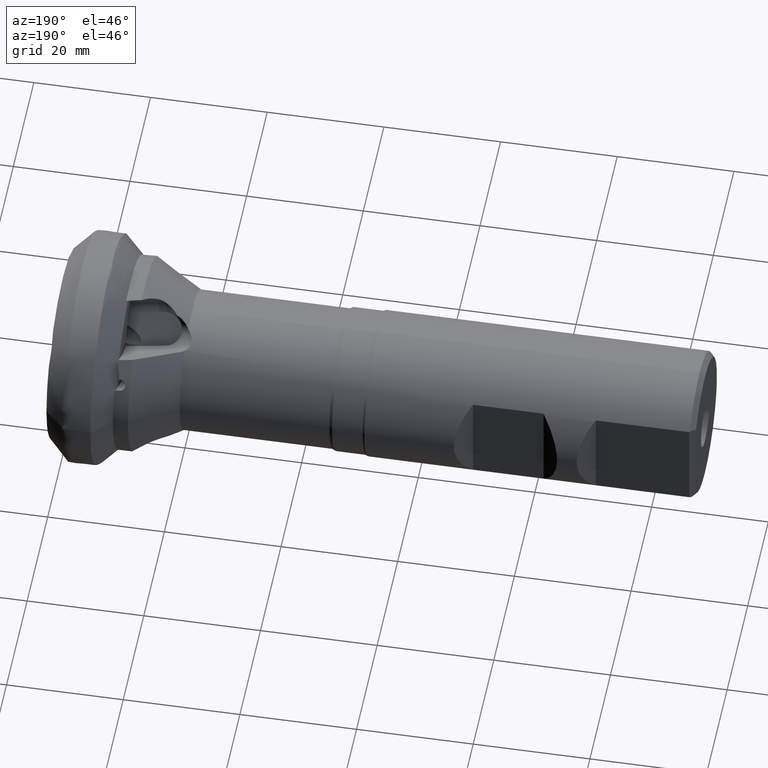
[diagram: clean part render]
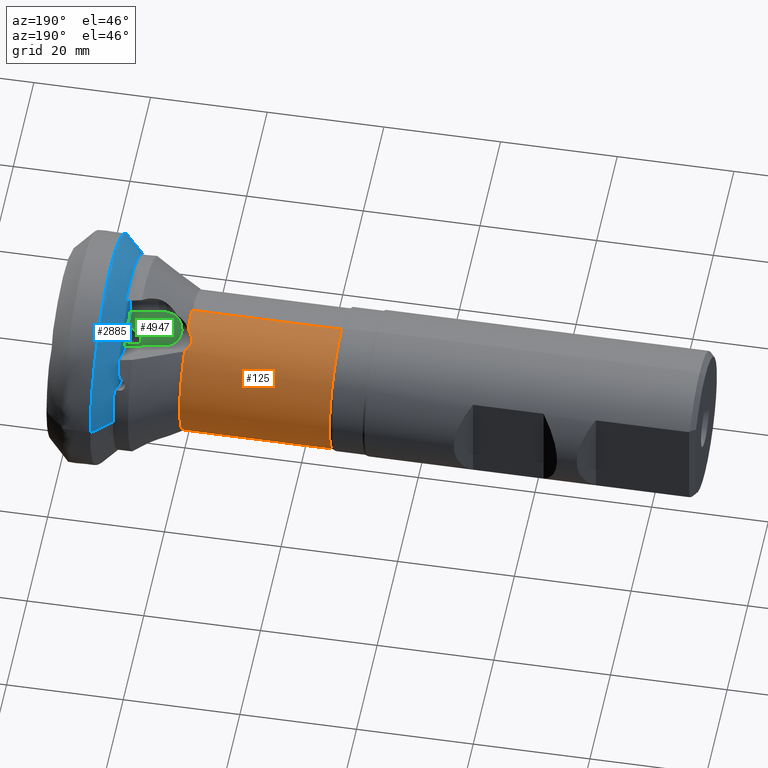
[diagram: same view with three faces highlighted in distinct colors, each labeled with its STEP entity id]
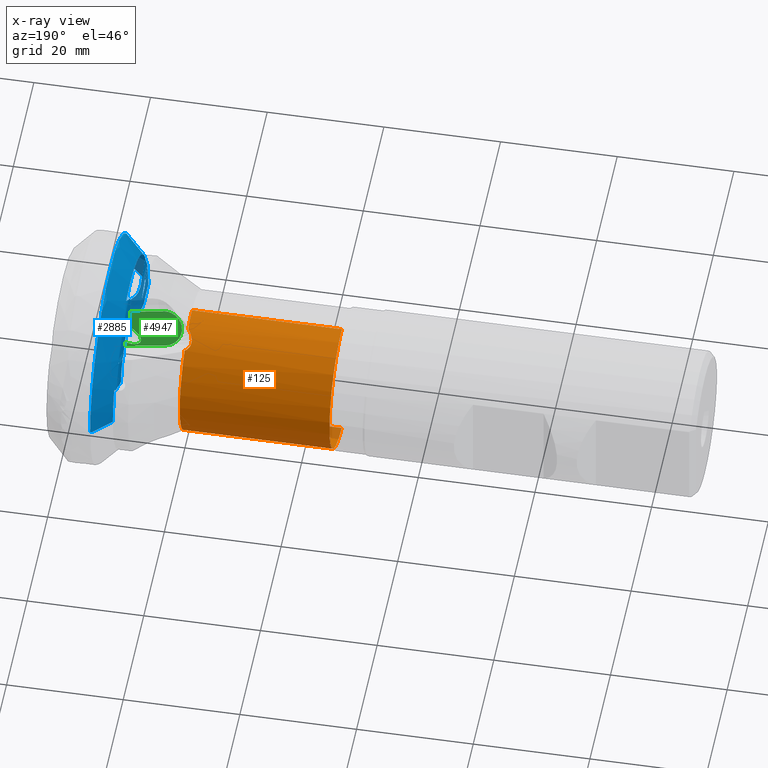
[diagram: x-ray of the same camera — body ghosted, the three highlighted faces saturated]
A machine part, auxiliary view with three faces highlighted in distinct colors.
The next image is the same camera in x-ray (body ghosted, the three faces saturated) — at least one of them is partly hidden behind the body in this view.
Their STEP definitions:

[orange] entity #125 — the highlighted cylindrical surface (partial cylindrical patch) has radius 12 mm, axis along (1, -0, -0).
#31 = EDGE_CURVE ( 'NONE', #6598, #3541, #4158, .T. ) ;
#84 = CARTESIAN_POINT ( 'NONE',  ( -21.46056899569103400, 4.077166803198720000, 11.29007866764865200 ) ) ;
#125 = ADVANCED_FACE ( 'NONE', ( #6249 ), #568, .T. ) ;
#140 = VECTOR ( 'NONE', #6852, 1000.000000000000000 ) ;
#451 = CARTESIAN_POINT ( 'NONE',  ( -21.23000000000000800, 4.668361501645567700, -11.05470039801863900 ) ) ;
#503 = CARTESIAN_POINT ( 'NONE',  ( 0.0000000000000000000, 1.469576158976823400E-015, 11.99999999999999500 ) ) ;
#536 = CARTESIAN_POINT ( 'NONE',  ( -22.14489805781642700, 6.302783757329702800, 10.21322494331098900 ) ) ;
#568 = CYLINDRICAL_SURFACE ( 'NONE', #6285, 11.99999999999999500 ) ;
#591 = EDGE_CURVE ( 'NONE', #5379, #1853, #1418, .T. ) ;
#600 = CARTESIAN_POINT ( 'NONE',  ( -21.98886194960558500, 5.000705612254714400, 10.90985875642880200 ) ) ;
#637 = CIRCLE ( 'NONE', #1751, 11.99999999999999500 ) ;
#919 = DIRECTION ( 'NONE',  ( 0.0000000000000000000, 0.0000000000000000000, -1.000000000000000000 ) ) ;
#994 = CARTESIAN_POINT ( 'NONE',  ( -22.14489805781546000, 5.693520376803829400, -10.56498332006483800 ) ) ;
#1027 = VERTEX_POINT ( 'NONE', #4429 ) ;
#1031 = ORIENTED_EDGE ( 'NONE', *, *, #5155, .F. ) ;
#1062 = DIRECTION ( 'NONE',  ( 1.000000000000000000, -0.0000000000000000000, -0.0000000000000000000 ) ) ;
#1112 = CARTESIAN_POINT ( 'NONE',  ( -21.66727695871584600, 7.494710037269216600, -9.377830869229022400 ) ) ;
#1171 = CARTESIAN_POINT ( 'NONE',  ( -22.10439581441060500, 5.324054466257506700, 10.75576676699459700 ) ) ;
#1211 = ORIENTED_EDGE ( 'NONE', *, *, #31, .F. ) ;
#1358 = CARTESIAN_POINT ( 'NONE',  ( -21.23000000000001100, 0.0000000000000000000, 0.0000000000000000000 ) ) ;
#1418 = CIRCLE ( 'NONE', #2451, 11.99999999999999500 ) ;
#1456 = CARTESIAN_POINT ( 'NONE',  ( 0.0000000000000000000, 0.0000000000000000000, 0.0000000000000000000 ) ) ;
#1534 = CARTESIAN_POINT ( 'NONE',  ( -21.81983903798305100, 6.866541939691422200, 9.842175853050568100 ) ) ;
#1571 = DIRECTION ( 'NONE',  ( 1.000000000000000000, -0.0000000000000000000, -0.0000000000000000000 ) ) ;
#1575 = LINE ( 'NONE', #503, #140 ) ;
#1633 = EDGE_CURVE ( 'NONE', #3541, #1027, #3093, .T. ) ;
#1640 = CARTESIAN_POINT ( 'NONE',  ( -22.14766664206119300, 6.497886134223090700, -10.09019168120012800 ) ) ;
#1751 = AXIS2_PLACEMENT_3D ( 'NONE', #4215, #1062, #4761 ) ;
#1761 = DIRECTION ( 'NONE',  ( 1.000000000000000000, -0.0000000000000000000, -0.0000000000000000000 ) ) ;
#1818 = ORIENTED_EDGE ( 'NONE', *, *, #6765, .F. ) ;
#1853 = VERTEX_POINT ( 'NONE', #1919 ) ;
#1919 = CARTESIAN_POINT ( 'NONE',  ( -46.88038475772931700, 1.469576158976823400E-015, 11.99999999999999500 ) ) ;
#1952 = DIRECTION ( 'NONE',  ( 1.000000000000000000, -0.0000000000000000000, -0.0000000000000000000 ) ) ;
#2059 = CARTESIAN_POINT ( 'NONE',  ( -21.91621521771649500, 7.089634315584365100, -9.683268191057321100 ) ) ;
#2065 = CARTESIAN_POINT ( 'NONE',  ( -21.39870938455828800, 7.170595769792816700, 9.622370525601065000 ) ) ;
#2069 = EDGE_CURVE ( 'NONE', #3372, #6598, #2775, .T. ) ;
#2170 = CARTESIAN_POINT ( 'NONE',  ( -22.19269486914591700, 6.182521649747386000, -10.28644342944119000 ) ) ;
#2297 = VERTEX_POINT ( 'NONE', #6363 ) ;
#2316 = VERTEX_POINT ( 'NONE', #4370 ) ;
#2451 = AXIS2_PLACEMENT_3D ( 'NONE', #3533, #1952, #5667 ) ;
#2551 = CARTESIAN_POINT ( 'NONE',  ( -21.23000000000001100, 7.962314422821817700, -8.977836545188575100 ) ) ;
#2573 = CARTESIAN_POINT ( 'NONE',  ( -21.23000000000000800, 4.668361501645567700, -11.05470039801863900 ) ) ;
#2591 = CARTESIAN_POINT ( 'NONE',  ( -21.98886194960848400, 6.947862028633833700, -9.785667475278824400 ) ) ;
#2744 = CARTESIAN_POINT ( 'NONE',  ( -21.66727695871068000, 4.374084746503389600, 11.17952472089110700 ) ) ;
#2775 = B_SPLINE_CURVE_WITH_KNOTS ( 'NONE', 3,
 ( #451, #3966, #6650, #6433, #5240, #5320, #994, #5347, #2170, #1640, #6319, #2591, #2059, #1112, #4822, #4274 ),
 .UNSPECIFIED., .F., .F.,
 ( 4, 2, 2, 2, 2, 2, 2, 4 ),
 ( 0.0000000000000000000, 0.0005614188587635987000, 0.001122837717527197400, 0.001684256576290796200, 0.002245675435054394800, 0.002807094293817993400, 0.003368513152581592400, 0.004491350870108784400 ),
 .UNSPECIFIED. ) ;
#3070 = AXIS2_PLACEMENT_3D ( 'NONE', #1358, #4011, #3519 ) ;
#3093 = B_SPLINE_CURVE_WITH_KNOTS ( 'NONE', 3,
 ( #3649, #2065, #4686, #1534, #5789, #5762, #536, #4351, #4397, #4879, #1171, #600, #3816, #2744, #84, #5937 ),
 .UNSPECIFIED., .F., .F.,
 ( 4, 2, 2, 2, 2, 2, 2, 4 ),
 ( 0.0000000000000000000, 0.0005614188587651092100, 0.001122837717530218400, 0.001684256576295327700, 0.002245675435060436800, 0.002807094293825545900, 0.003368513152590655500, 0.004491350870120873600 ),
 .UNSPECIFIED. ) ;
#3142 = CARTESIAN_POINT ( 'NONE',  ( -46.88038475772931700, 0.0000000000000000000, -11.99999999999999500 ) ) ;
#3143 = AXIS2_PLACEMENT_3D ( 'NONE', #4745, #1571, #5278 ) ;
#3171 = LINE ( 'NONE', #4391, #4386 ) ;
#3371 = ORIENTED_EDGE ( 'NONE', *, *, #591, .T. ) ;
#3372 = VERTEX_POINT ( 'NONE', #2573 ) ;
#3519 = DIRECTION ( 'NONE',  ( 0.0000000000000000000, 0.0000000000000000000, -1.000000000000000000 ) ) ;
#3533 = CARTESIAN_POINT ( 'NONE',  ( -46.88038475772931700, 0.0000000000000000000, 0.0000000000000000000 ) ) ;
#3541 = VERTEX_POINT ( 'NONE', #6487 ) ;
#3649 = CARTESIAN_POINT ( 'NONE',  ( -21.23000000000001500, 7.239470625087248500, 9.570269853483688700 ) ) ;
#3816 = CARTESIAN_POINT ( 'NONE',  ( -21.91621521771303400, 4.841139087313938400, 10.98143751636984600 ) ) ;
#3851 = EDGE_LOOP ( 'NONE', ( #3371, #4196, #1818, #6099, #1211, #4854, #5920, #1031 ) ) ;
#3966 = CARTESIAN_POINT ( 'NONE',  ( -21.39870938455784000, 4.747919434900460100, -11.02110335971046800 ) ) ;
#4011 = DIRECTION ( 'NONE',  ( 1.000000000000000000, -0.0000000000000000000, -0.0000000000000000000 ) ) ;
#4158 = CIRCLE ( 'NONE', #3070, 11.99999999999999500 ) ;
#4196 = ORIENTED_EDGE ( 'NONE', *, *, #6795, .T. ) ;
#4215 = CARTESIAN_POINT ( 'NONE',  ( -21.23000000000001100, 0.0000000000000000000, 0.0000000000000000000 ) ) ;
#4274 = CARTESIAN_POINT ( 'NONE',  ( -21.23000000000001100, 7.962314422821817700, -8.977836545188575100 ) ) ;
#4351 = CARTESIAN_POINT ( 'NONE',  ( -22.19494018915707300, 5.981127857554658300, 10.40486215122105500 ) ) ;
#4370 = CARTESIAN_POINT ( 'NONE',  ( -21.23000000000001100, 0.0000000000000000000, -11.99999999999999600 ) ) ;
#4386 = VECTOR ( 'NONE', #1761, 1000.000000000000000 ) ;
#4391 = CARTESIAN_POINT ( 'NONE',  ( 0.0000000000000000000, 0.0000000000000000000, -11.99999999999999500 ) ) ;
#4397 = CARTESIAN_POINT ( 'NONE',  ( -22.19269486914569400, 5.817060499608999200, 10.49744252285182500 ) ) ;
#4429 = CARTESIAN_POINT ( 'NONE',  ( -21.22999999999650800, 3.793877307735805900, 11.38448483568308900 ) ) ;
#4686 = CARTESIAN_POINT ( 'NONE',  ( -21.55143678194674800, 7.083812738703921100, 9.686971705073210300 ) ) ;
#4743 = CIRCLE ( 'NONE', #3143, 11.99999999999999500 ) ;
#4745 = CARTESIAN_POINT ( 'NONE',  ( -21.23000000000001100, 0.0000000000000000000, 0.0000000000000000000 ) ) ;
#4761 = DIRECTION ( 'NONE',  ( 0.0000000000000000000, 0.0000000000000000000, -1.000000000000000000 ) ) ;
#4822 = CARTESIAN_POINT ( 'NONE',  ( -21.46056899569756400, 7.738911535301793900, -9.175969360867217300 ) ) ;
#4854 = ORIENTED_EDGE ( 'NONE', *, *, #2069, .F. ) ;
#4879 = CARTESIAN_POINT ( 'NONE',  ( -22.14766664205995600, 5.489419257856355600, 10.67243030373891900 ) ) ;
#5001 = EDGE_CURVE ( 'NONE', #2316, #3372, #4743, .T. ) ;
#5155 = EDGE_CURVE ( 'NONE', #5379, #2316, #3171, .T. ) ;
#5240 = CARTESIAN_POINT ( 'NONE',  ( -21.92889608105974400, 5.228571125092417800, -10.80235822820455600 ) ) ;
#5278 = DIRECTION ( 'NONE',  ( 0.0000000000000000000, 0.0000000000000000000, -1.000000000000000000 ) ) ;
#5320 = CARTESIAN_POINT ( 'NONE',  ( -22.09280481892691100, 5.532474608239235500, -10.64991192497839700 ) ) ;
#5347 = CARTESIAN_POINT ( 'NONE',  ( -22.19494018915682800, 6.020311017050779900, -10.38223974353827300 ) ) ;
#5379 = VERTEX_POINT ( 'NONE', #3142 ) ;
#5667 = DIRECTION ( 'NONE',  ( 0.0000000000000000000, 0.0000000000000000000, -1.000000000000000000 ) ) ;
#5677 = DIRECTION ( 'NONE',  ( 1.000000000000000000, -0.0000000000000000000, -0.0000000000000000000 ) ) ;
#5762 = CARTESIAN_POINT ( 'NONE',  ( -22.09280481892816900, 6.456856970975581900, 10.11621951901861200 ) ) ;
#5789 = CARTESIAN_POINT ( 'NONE',  ( -21.92889608106114000, 6.740831083857006700, 9.929254533927322200 ) ) ;
#5920 = ORIENTED_EDGE ( 'NONE', *, *, #5001, .F. ) ;
#5937 = CARTESIAN_POINT ( 'NONE',  ( -21.22999999999650800, 3.793877307735805900, 11.38448483568308900 ) ) ;
#6099 = ORIENTED_EDGE ( 'NONE', *, *, #1633, .F. ) ;
#6249 = FACE_OUTER_BOUND ( 'NONE', #3851, .T. ) ;
#6285 = AXIS2_PLACEMENT_3D ( 'NONE', #1456, #5677, #919 ) ;
#6319 = CARTESIAN_POINT ( 'NONE',  ( -22.10439581441238800, 6.652740024263205300, -9.988649802412140800 ) ) ;
#6363 = CARTESIAN_POINT ( 'NONE',  ( -21.23000000000001100, 1.469576158976823400E-015, 11.99999999999999500 ) ) ;
#6433 = CARTESIAN_POINT ( 'NONE',  ( -21.81983903798170500, 5.090303347408371000, -10.86768768245003400 ) ) ;
#6487 = CARTESIAN_POINT ( 'NONE',  ( -21.23000000000001500, 7.239470625087248500, 9.570269853483688700 ) ) ;
#6598 = VERTEX_POINT ( 'NONE', #2551 ) ;
#6650 = CARTESIAN_POINT ( 'NONE',  ( -21.55143678194590600, 4.847257212981911100, -10.97824763990628600 ) ) ;
#6765 = EDGE_CURVE ( 'NONE', #1027, #2297, #637, .T. ) ;
#6795 = EDGE_CURVE ( 'NONE', #1853, #2297, #1575, .T. ) ;
#6852 = DIRECTION ( 'NONE',  ( 1.000000000000000000, -0.0000000000000000000, -0.0000000000000000000 ) ) ;

[blue] entity #2885 — the highlighted face is a freeform B-spline surface patch.
#6 = CARTESIAN_POINT ( 'NONE',  ( -10.81961160506152300, -7.769359936910504400, 7.083832473389907000 ) ) ;
#10 = CARTESIAN_POINT ( 'NONE',  ( -10.90701120772930100, -12.70651885333384000, 9.678640401803955100 ) ) ;
#11 = CARTESIAN_POINT ( 'NONE',  ( -10.58995125432905500, 15.41037046307015900, 6.304203533431855400 ) ) ;
#17 = VERTEX_POINT ( 'NONE', #3497 ) ;
#23 = ORIENTED_EDGE ( 'NONE', *, *, #6757, .F. ) ;
#29 = B_SPLINE_CURVE_WITH_KNOTS ( 'NONE', 3,
 ( #5428, #1710, #6502, #3321, #119, #3844, #656, #4359, #1204, #4911, #1727, #5453, #2272, #5991, #2795, #6524, #3343, #139 ),
 .UNSPECIFIED., .F., .F.,
 ( 4, 2, 2, 2, 2, 2, 2, 2, 4 ),
 ( 0.003631276605787015300, 0.004399232924139229000, 0.005167189242491441000, 0.006703101879195859700, 0.008239014515900278500, 0.009006970834252484400, 0.009390948993428589000, 0.009582938073016637100, 0.009774927152604688500 ),
 .UNSPECIFIED. ) ;
#30 = CARTESIAN_POINT ( 'NONE',  ( -10.12437920768664600, 2.148417082087148900, 8.879880800998027000 ) ) ;
#32 = CARTESIAN_POINT ( 'NONE',  ( -7.244804044064778700, 19.80200558491920400, 39.60401116983840800 ) ) ;
#34 = EDGE_CURVE ( 'NONE', #1373, #4875, #604, .T. ) ;
#51 = CARTESIAN_POINT ( 'NONE',  ( -8.387628670478912700, 7.444819991123704700, 2.471458386169264700 ) ) ;
#91 = EDGE_CURVE ( 'NONE', #4508, #5021, #3005, .T. ) ;
#93 = CARTESIAN_POINT ( 'NONE',  ( -9.062077723209659700, -8.063334406116611700, 1.728159994187754800 ) ) ;
#94 = VERTEX_POINT ( 'NONE', #1963 ) ;
#119 = CARTESIAN_POINT ( 'NONE',  ( -10.92978692429226800, 8.192810710554145000, 8.329867322340138700 ) ) ;
#123 = CARTESIAN_POINT ( 'NONE',  ( -8.817521742150836100, 7.919525011812696700, 1.649245171727918000 ) ) ;
#126 = ORIENTED_EDGE ( 'NONE', *, *, #4737, .F. ) ;
#131 = CARTESIAN_POINT ( 'NONE',  ( -10.89830274595081100, -12.83927470889181600, 9.862053073451859200 ) ) ;
#136 = CARTESIAN_POINT ( 'NONE',  ( -7.521057656167998900, -19.70385763638634200, 2.413026618525565600E-015 ) ) ;
#139 = CARTESIAN_POINT ( 'NONE',  ( -10.80162684967190500, 12.41556579562132600, 10.74707796018420900 ) ) ;
#149 = CARTESIAN_POINT ( 'NONE',  ( -10.93522753063218600, -11.22985715662881700, 9.062989024352662100 ) ) ;
#159 = CARTESIAN_POINT ( 'NONE',  ( -7.645625428787385900, 19.59765596845245700, 0.0000000000000000000 ) ) ;
#180 = CARTESIAN_POINT ( 'NONE',  ( -8.662429298905689000, 7.567537802496439700, 2.586904901878047400 ) ) ;
#184 = CARTESIAN_POINT ( 'NONE',  ( -7.755216437623947600, -19.48341597440879300, 2.386030300951613000E-015 ) ) ;
#185 = CARTESIAN_POINT ( 'NONE',  ( -10.62816697864307300, -16.61056770839396200, 2.034207857610504000E-015 ) ) ;
#189 = CARTESIAN_POINT ( 'NONE',  ( -10.56390585091514500, 16.67669912417685300, 33.35339824835370600 ) ) ;
#207 = CARTESIAN_POINT ( 'NONE',  ( -8.696961296391615200, 5.969979528681637500, 5.353957000177293100 ) ) ;
#209 = CARTESIAN_POINT ( 'NONE',  ( -10.93152784237210500, 8.949256624727121700, 7.678521120856958100 ) ) ;
#210 = CARTESIAN_POINT ( 'NONE',  ( -8.728522021667821200, -18.53742542633393600, 37.07485085266787200 ) ) ;
#213 = CARTESIAN_POINT ( 'NONE',  ( -10.69705258426212600, -16.54858203431043500, 33.09716406862086300 ) ) ;
#225 = CARTESIAN_POINT ( 'NONE',  ( -10.91155436691627600, 14.57720028197892000, 6.070665385607672900 ) ) ;
#234 = CARTESIAN_POINT ( 'NONE',  ( -10.77371067212413500, -16.45708472204162100, 2.015411612814507300E-015 ) ) ;
#239 = CARTESIAN_POINT ( 'NONE',  ( -10.90178985799025000, 12.62589745679106600, 10.04556158035099000 ) ) ;
#242 = B_SPLINE_CURVE_WITH_KNOTS ( 'NONE', 3,
 ( #6382, #2651, #1077, #4789, #1607, #5319, #2138, #5854, #2671, #6401, #3214, #6, #3743, #550, #4257, #1100, #4806, #1632, #5340, #636 ),
 .UNSPECIFIED., .F., .F.,
 ( 4, 2, 2, 2, 2, 2, 2, 2, 2, 4 ),
 ( 0.0000000000000000000, 0.0009108292247573451600, 0.001821658449514690300, 0.002277073061893361600, 0.002732487674272032300, 0.003187902286650703400, 0.003643316899029374100, 0.004554146123786712000, 0.005464975348544048200, 0.007286633798058717900 ),
 .UNSPECIFIED. ) ;
#254 = CARTESIAN_POINT ( 'NONE',  ( -8.817521742158090700, -5.388050721684531500, 6.033887260284267900 ) ) ;
#257 = CARTESIAN_POINT ( 'NONE',  ( -10.90268909994820500, -16.12507940635899900, 1.974752688099444300E-015 ) ) ;
#260 = CARTESIAN_POINT ( 'NONE',  ( -10.89563567897364200, 16.20006270994961300, 0.0000000000000000000 ) ) ;
#270 = CARTESIAN_POINT ( 'NONE',  ( -10.93773263938012100, 1.534792536340966900, 14.11051708418801600 ) ) ;
#285 = CARTESIAN_POINT ( 'NONE',  ( -9.271207150307871500, -8.385219455529362900, 0.1065251704568098700 ) ) ;
#287 = CARTESIAN_POINT ( 'NONE',  ( -10.90268909994820700, 16.12507940635899200, 32.25015881271798400 ) ) ;
#307 = CARTESIAN_POINT ( 'NONE',  ( -10.93075723662969900, 1.798650773089773400, 11.63464547593539100 ) ) ;
#309 = CARTESIAN_POINT ( 'NONE',  ( -9.662859522187414300, -17.60353617006333600, 2.155811422434271300E-015 ) ) ;
#313 = CARTESIAN_POINT ( 'NONE',  ( -10.90335496150506100, -16.11396077819171100, 32.22792155638341400 ) ) ;
#325 = EDGE_CURVE ( 'NONE', #3962, #2628, #2278, .T. ) ;
#330 = EDGE_CURVE ( 'NONE', #499, #5006, #3523, .T. ) ;
#334 = VERTEX_POINT ( 'NONE', #5502 ) ;
#339 = CARTESIAN_POINT ( 'NONE',  ( -10.90450981562145000, -16.06927926731642100, 1.967919141932397200E-015 ) ) ;
#340 = ORIENTED_EDGE ( 'NONE', *, *, #34, .F. ) ;
#341 = EDGE_CURVE ( 'NONE', #2258, #2051, #5988, .T. ) ;
#342 = CARTESIAN_POINT ( 'NONE',  ( -10.89540530017101500, 8.087565909660067800, 7.477810941108471900 ) ) ;
#348 = CARTESIAN_POINT ( 'NONE',  ( -8.734534190237379600, 4.781151744112128700, 6.468802260501216300 ) ) ;
#365 = CARTESIAN_POINT ( 'NONE',  ( -10.90713302724242200, 15.96778674379558200, 0.0000000000000000000 ) ) ;
#392 = CARTESIAN_POINT ( 'NONE',  ( -10.90983111773220500, 15.86061240098127300, 31.72122480196254600 ) ) ;
#397 = CARTESIAN_POINT ( 'NONE',  ( -7.555841478998448000, 19.67420229356344000, 39.34840458712687900 ) ) ;
#411 = CARTESIAN_POINT ( 'NONE',  ( -10.94983324268543100, -13.20531772914560900, 26.41063545829121800 ) ) ;
#413 = CARTESIAN_POINT ( 'NONE',  ( -8.734534190235749000, -7.992722961707065600, 0.9061977395009175300 ) ) ;
#417 = CARTESIAN_POINT ( 'NONE',  ( -7.597528977420162200, -19.63866114378382800, 39.27732228756765000 ) ) ;
#434 = CARTESIAN_POINT ( 'NONE',  ( -10.87779478044812400, -9.408634261467685900, 1.152225383265451900E-015 ) ) ;
#435 = CARTESIAN_POINT ( 'NONE',  ( -10.94215867994240600, -12.42415248602969900, 3.571334208685025900 ) ) ;
#452 = CARTESIAN_POINT ( 'NONE',  ( -10.84886454115043400, 10.15058806963004300, 3.267001573918127700 ) ) ;
#454 = CARTESIAN_POINT ( 'NONE',  ( -10.90279430846515200, 14.90160317874406800, 6.188896796946449900 ) ) ;
#481 = CARTESIAN_POINT ( 'NONE',  ( -10.83803739710348100, -15.47192404847102600, 5.347863010840175200 ) ) ;
#483 = CARTESIAN_POINT ( 'NONE',  ( -10.92538456862804000, -10.88663474182397900, 3.723262217289109900 ) ) ;
#493 = CARTESIAN_POINT ( 'NONE',  ( -10.86970896961212700, 12.61724764419279600, 10.30414807740687500 ) ) ;
#494 = ORIENTED_EDGE ( 'NONE', *, *, #3058, .T. ) ;
#495 = CARTESIAN_POINT ( 'NONE',  ( -10.56792396550340600, 2.682823582156558000, 9.418247738136436500 ) ) ;
#497 = CARTESIAN_POINT ( 'NONE',  ( -10.90334206318891600, -14.99411654988964700, 5.913614047543194200 ) ) ;
#499 = VERTEX_POINT ( 'NONE', #2422 ) ;
#509 = ORIENTED_EDGE ( 'NONE', *, *, #4600, .F. ) ;
#539 = CARTESIAN_POINT ( 'NONE',  ( -10.90347759381804400, 12.61119327655343400, 10.02320547573475600 ) ) ;
#543 = CARTESIAN_POINT ( 'NONE',  ( -7.755216437623953000, 19.48341597440878600, 0.0000000000000000000 ) ) ;
#550 = CARTESIAN_POINT ( 'NONE',  ( -10.91251350534637200, -8.306177710104442700, 7.378687999416777100 ) ) ;
#556 = CARTESIAN_POINT ( 'NONE',  ( -10.91155436691625600, -12.54595058280107800, 9.588893067443798700 ) ) ;
#558 = CARTESIAN_POINT ( 'NONE',  ( -10.90419643325648700, 12.59005888537180900, 10.00509745731192600 ) ) ;
#559 = CARTESIAN_POINT ( 'NONE',  ( -10.80162684967251100, 7.093617539867646600, 7.674449702111631100 ) ) ;
#604 = B_SPLINE_CURVE_WITH_KNOTS ( 'NONE', 3,
 ( #847, #2427, #6677, #2457, #2982, #6705 ),
 .UNSPECIFIED., .F., .F.,
 ( 4, 2, 4 ),
 ( 0.0008723508690352528700, 0.002095957731190151700, 0.003319564593345049900 ),
 .UNSPECIFIED. ) ;
#607 = ORIENTED_EDGE ( 'NONE', *, *, #5448, .T. ) ;
#636 = CARTESIAN_POINT ( 'NONE',  ( -10.93522753063218600, -11.22985715662881700, 9.062989024352662100 ) ) ;
#652 = CARTESIAN_POINT ( 'NONE',  ( -7.573480751736561000, -19.65916373144952800, 2.407553193763339500E-015 ) ) ;
#655 = B_SPLINE_CURVE_WITH_KNOTS ( 'NONE', 3,
 ( #1115, #6438, #4313, #1156, #4866, #1685, #5401, #2219, #5943, #2751, #6478, #3299, #93, #3822 ),
 .UNSPECIFIED., .F., .F.,
 ( 4, 2, 2, 2, 2, 2, 4 ),
 ( 0.001043979300369672500, 0.001616676579085547800, 0.002189373857801422900, 0.003334768415233174300, 0.003907465693949049900, 0.004480162972664924500, 0.005625557530096674700 ),
 .UNSPECIFIED. ) ;
#656 = CARTESIAN_POINT ( 'NONE',  ( -10.94215867994240600, 9.304942393140507300, 8.973964569050743000 ) ) ;
#661 = VERTEX_POINT ( 'NONE', #4422 ) ;
#672 = CARTESIAN_POINT ( 'NONE',  ( -10.84778524178278400, -12.94052309380047200, 9.991155986146958800 ) ) ;
#703 = CARTESIAN_POINT ( 'NONE',  ( -7.645625428787386800, 19.59765596845245700, 39.19531193690491500 ) ) ;
#704 = CARTESIAN_POINT ( 'NONE',  ( -10.87650741166428300, -16.27373160875232500, 1.992957332484163600E-015 ) ) ;
#721 = CARTESIAN_POINT ( 'NONE',  ( -8.817521742158090700, -5.388050721684531500, 6.033887260284267900 ) ) ;
#724 = CARTESIAN_POINT ( 'NONE',  ( -8.387628670478909100, -5.862755742380552500, 5.211674045830706700 ) ) ;
#732 = CARTESIAN_POINT ( 'NONE',  ( -10.56390585091514100, -16.67669912417686000, 2.042306620276665400E-015 ) ) ;
#734 = CARTESIAN_POINT ( 'NONE',  ( -9.330932286244712200, 4.346612570915406900, 7.221446186328925900 ) ) ;
#749 = CARTESIAN_POINT ( 'NONE',  ( -9.062077723213073800, 5.528297659825288900, 6.118972437818446700 ) ) ;
#753 = CARTESIAN_POINT ( 'NONE',  ( -8.981759988107302900, 5.224304470807936700, 6.299868613497579000 ) ) ;
#755 = CARTESIAN_POINT ( 'NONE',  ( -10.73653182809819700, 16.50146052629802200, 0.0000000000000000000 ) ) ;
#769 = CIRCLE ( 'NONE', #6888, 16.64999999999999900 ) ;
#775 = CARTESIAN_POINT ( 'NONE',  ( -10.91971745416028800, 14.26085999465754700, 5.882802488646931700 ) ) ;
#781 = CARTESIAN_POINT ( 'NONE',  ( -10.80800862843216600, 16.41614747841839200, 32.83229495683678300 ) ) ;
#783 = CARTESIAN_POINT ( 'NONE',  ( -10.84069218099148700, 12.54623367570731300, 10.50155359715530400 ) ) ;
#787 = ORIENTED_EDGE ( 'NONE', *, *, #2342, .F. ) ;
#791 = DIRECTION ( 'NONE',  ( -1.041875961547632000E-016, 1.000000000000000000, 0.0000000000000000000 ) ) ;
#794 = CARTESIAN_POINT ( 'NONE',  ( -7.403937920777178100, 19.76726985713419500, 0.0000000000000000000 ) ) ;
#806 = CARTESIAN_POINT ( 'NONE',  ( -10.89563567897363900, -16.20006270994961600, 32.40012541989922600 ) ) ;
#814 = CARTESIAN_POINT ( 'NONE',  ( -10.94039609472350000, 1.435970969302591300, 13.73019384673398100 ) ) ;
#819 = DIRECTION ( 'NONE',  ( 1.000000000000000000, 1.229830137152421000E-016, -0.0000000000000000000 ) ) ;
#828 = CARTESIAN_POINT ( 'NONE',  ( -9.398053035840254300, -8.470312455437532900, 1.037314103632953100E-015 ) ) ;
#833 = CARTESIAN_POINT ( 'NONE',  ( -9.330932286252222600, -8.427262134885891600, 0.1535538136761910300 ) ) ;
#834 = CARTESIAN_POINT ( 'NONE',  ( -10.90268909994820500, -16.12507940635899900, 1.974752688099444300E-015 ) ) ;
#838 = CARTESIAN_POINT ( 'NONE',  ( -10.58995125432905500, 15.41037046307015900, 6.304203533431855400 ) ) ;
#847 = CARTESIAN_POINT ( 'NONE',  ( -10.93075723662969900, 1.798650773089773400, 11.63464547593539100 ) ) ;
#853 = CARTESIAN_POINT ( 'NONE',  ( -10.94140850246291500, 1.390057570139191100, 12.94287427958686000 ) ) ;
#855 = CARTESIAN_POINT ( 'NONE',  ( -10.69705258426212600, -16.54858203431043900, 2.026616801874566600E-015 ) ) ;
#860 = CARTESIAN_POINT ( 'NONE',  ( -10.90339606826278800, 16.11237035043440000, 0.0000000000000000000 ) ) ;
#874 = CARTESIAN_POINT ( 'NONE',  ( -9.330932286244712200, 4.346612570915406900, 7.221446186328925900 ) ) ;
#887 = CARTESIAN_POINT ( 'NONE',  ( -10.90562356298011300, 16.02618818419842500, 32.05237636839685000 ) ) ;
#900 = CARTESIAN_POINT ( 'NONE',  ( -10.93548252501994800, -11.32867938122377200, 8.901077648512075100 ) ) ;
#911 = CARTESIAN_POINT ( 'NONE',  ( -10.90713302724241800, -15.96778674379558500, 31.93557348759116000 ) ) ;
#914 = EDGE_CURVE ( 'NONE', #1755, #5574, #5534, .T. ) ;
#934 = CARTESIAN_POINT ( 'NONE',  ( -10.90983111773220100, -15.86061240098128000, 1.942364820937853300E-015 ) ) ;
#955 = CARTESIAN_POINT ( 'NONE',  ( -10.93241563888022900, 11.88919875636668300, 0.0000000000000000000 ) ) ;
#979 = CARTESIAN_POINT ( 'NONE',  ( -8.844673589067790300, 8.077788822951667700, 16.15557764590333500 ) ) ;
#982 = CARTESIAN_POINT ( 'NONE',  ( -8.732131306252073300, 3.282052368617834700, 7.339898402641564300 ) ) ;
#995 = CARTESIAN_POINT ( 'NONE',  ( -10.91251350534640200, 10.54322010914710500, 3.504016905590391100 ) ) ;
#998 = CARTESIAN_POINT ( 'NONE',  ( -10.90404484984550300, 14.84515557562232000, 6.198514000700960500 ) ) ;
#1007 = CARTESIAN_POINT ( 'NONE',  ( -8.978935952634474300, 2.386719055718094400, 7.838982176207378100 ) ) ;
#1011 = CARTESIAN_POINT ( 'NONE',  ( -9.156807439793583500, -8.306810932781193200, 1.172893774155346600E-012 ) ) ;
#1026 = CARTESIAN_POINT ( 'NONE',  ( -10.93298658278080500, -11.23865338326285200, 3.988959344700937500 ) ) ;
#1033 = CARTESIAN_POINT ( 'NONE',  ( -10.68659292653008000, 3.637502470963694300, 16.15482871009980300 ) ) ;
#1053 = CARTESIAN_POINT ( 'NONE',  ( -10.90096634305704600, -15.02248464109884900, 5.910473167981577600 ) ) ;
#1072 = CARTESIAN_POINT ( 'NONE',  ( -7.257533585086983800, 19.80111132039431600, 0.0000000000000000000 ) ) ;
#1077 = CARTESIAN_POINT ( 'NONE',  ( -9.312239905709034800, -5.730423458031126800, 6.151272113062466600 ) ) ;
#1083 = CARTESIAN_POINT ( 'NONE',  ( -10.93547793123200900, 13.39691649474785600, 5.301619913951091300 ) ) ;
#1095 = CARTESIAN_POINT ( 'NONE',  ( -8.728522021667828300, 18.53742542633393600, 0.0000000000000000000 ) ) ;
#1100 = CARTESIAN_POINT ( 'NONE',  ( -10.93518150880388100, -9.104332088435246100, 7.835824022573183000 ) ) ;
#1105 = CARTESIAN_POINT ( 'NONE',  ( -10.91971745416026700, -12.22508639794425800, 9.408865790863622200 ) ) ;
#1106 = ORIENTED_EDGE ( 'NONE', *, *, #330, .F. ) ;
#1115 = CARTESIAN_POINT ( 'NONE',  ( -8.662429298905674800, -6.024094263449121000, 5.260227530121929900 ) ) ;
#1127 = CARTESIAN_POINT ( 'NONE',  ( -10.00496240472391900, 2.098824207424419400, 8.756835562161033000 ) ) ;
#1144 = CARTESIAN_POINT ( 'NONE',  ( -8.571681135864670500, 7.525333216255240200, 2.547811226849424000 ) ) ;
#1156 = CARTESIAN_POINT ( 'NONE',  ( -8.464974571621096900, -6.393449558517720500, 4.620485393018510600 ) ) ;
#1167 = CARTESIAN_POINT ( 'NONE',  ( -8.745035702593961300, 2.956126421025255800, 7.483661641435983100 ) ) ;
#1173 = EDGE_LOOP ( 'NONE', ( #4916, #3661 ) ) ;
#1174 = CARTESIAN_POINT ( 'NONE',  ( -10.93548252501995100, 13.37289905528768800, 5.360385311196850500 ) ) ;
#1182 = VERTEX_POINT ( 'NONE', #838 ) ;
#1201 = CARTESIAN_POINT ( 'NONE',  ( -10.75627145001622700, -16.47789977229182400, 2.017960721280807600E-015 ) ) ;
#1204 = CARTESIAN_POINT ( 'NONE',  ( -10.93645649754269700, 10.64117105448064000, 9.744511181517195200 ) ) ;
#1214 = FACE_BOUND ( 'NONE', #1173, .T. ) ;
#1220 = CARTESIAN_POINT ( 'NONE',  ( -10.74990593845100100, -13.04144812378431500, 10.08764889190716300 ) ) ;
#1243 = CARTESIAN_POINT ( 'NONE',  ( -8.662429298905674800, -6.024094263449121000, 5.260227530121929900 ) ) ;
#1246 = CARTESIAN_POINT ( 'NONE',  ( -7.645625428787381500, -19.59765596845246400, 2.400020665255632500E-015 ) ) ;
#1260 = EDGE_CURVE ( 'NONE', #1441, #3962, #3076, .T. ) ;
#1272 = CARTESIAN_POINT ( 'NONE',  ( -7.777878005713508200, 19.46139038494467900, 0.0000000000000000000 ) ) ;
#1276 = CARTESIAN_POINT ( 'NONE',  ( -10.58533138092851400, 16.65466032959879100, 33.30932065919758100 ) ) ;
#1278 = CARTESIAN_POINT ( 'NONE',  ( -9.129471299852134800, 4.126995211342833900, 7.187734375437227800 ) ) ;
#1283 = B_SPLINE_CURVE_WITH_KNOTS ( 'NONE', 3,
 ( #6516, #5984, #131, #3855, #672, #4376, #1220, #4930, #1742, #5465 ),
 .UNSPECIFIED., .F., .F.,
 ( 4, 2, 2, 2, 4 ),
 ( 7.282903170238190700E-005, 0.0002444821423115654900, 0.0004161352529207491100, 0.0005877883635299326100, 0.0007594414741391162300 ),
 .UNSPECIFIED. ) ;
#1302 = CARTESIAN_POINT ( 'NONE',  ( -10.73653182809819600, -16.50146052629802200, 33.00292105259604400 ) ) ;
#1316 = CARTESIAN_POINT ( 'NONE',  ( -10.93236336691042300, 13.62699882655362900, 5.508979499374374800 ) ) ;
#1323 = CARTESIAN_POINT ( 'NONE',  ( -10.80800862843216100, -16.41614747841839900, 2.010398246377597700E-015 ) ) ;
#1333 = CARTESIAN_POINT ( 'NONE',  ( -7.343606973134424000, -19.78703425113675300, 39.57406850227349800 ) ) ;
#1340 = CARTESIAN_POINT ( 'NONE',  ( -10.92857893244858600, 1.879387770064702100, 14.82086529853255600 ) ) ;
#1342 = CARTESIAN_POINT ( 'NONE',  ( -7.403937920777172700, -19.76726985713420200, 2.420792375842134700E-015 ) ) ;
#1346 = CARTESIAN_POINT ( 'NONE',  ( -10.90025857170431100, 16.15091779568168600, 0.0000000000000000000 ) ) ;
#1355 = CARTESIAN_POINT ( 'NONE',  ( -10.93129650202219900, 1.775392024744342200, 14.65173133716553300 ) ) ;
#1373 = VERTEX_POINT ( 'NONE', #5443 ) ;
#1374 = CARTESIAN_POINT ( 'NONE',  ( -10.90298709648045200, 16.12191147344717400, 32.24382294689434800 ) ) ;
#1381 = CARTESIAN_POINT ( 'NONE',  ( -8.886230013947017200, 3.752899620635440100, 7.214726995084477700 ) ) ;
#1399 = CARTESIAN_POINT ( 'NONE',  ( -10.90339606826278500, -16.11237035043440400, 32.22474070086880000 ) ) ;
#1402 = CARTESIAN_POINT ( 'NONE',  ( -10.93319665361799900, 1.699183587142769200, 11.80692769568148400 ) ) ;
#1423 = CARTESIAN_POINT ( 'NONE',  ( -10.90562356298011100, -16.02618818419843500, 1.962642006231173600E-015 ) ) ;
#1431 = EDGE_LOOP ( 'NONE', ( #3044, #6681 ) ) ;
#1441 = VERTEX_POINT ( 'NONE', #4837 ) ;
#1445 = CARTESIAN_POINT ( 'NONE',  ( -10.90792446104971300, 15.93716602922587800, 0.0000000000000000000 ) ) ;
#1464 = CARTESIAN_POINT ( 'NONE',  ( -9.662859522187419600, 17.60353617006332900, 35.20707234012665800 ) ) ;
#1470 = CARTESIAN_POINT ( 'NONE',  ( -10.91020628360242200, 15.84530152632867400, 31.69060305265734800 ) ) ;
#1489 = CARTESIAN_POINT ( 'NONE',  ( -10.93241563888022600, -11.88919875636668500, 23.77839751273336700 ) ) ;
#1515 = CARTESIAN_POINT ( 'NONE',  ( -8.844673589067788600, -8.077788822951673000, 9.892438226216030900E-016 ) ) ;
#1527 = CARTESIAN_POINT ( 'NONE',  ( -10.57778058385315800, 9.405981219307024700, 2.793110405135915900 ) ) ;
#1530 = CARTESIAN_POINT ( 'NONE',  ( -10.89830274594827800, 14.96042584954133400, 6.188111527342007500 ) ) ;
#1538 = CARTESIAN_POINT ( 'NONE',  ( -10.83178712984612200, -10.25697734292035400, 2.590721442887606000 ) ) ;
#1553 = EDGE_CURVE ( 'NONE', #2258, #2777, #6665, .T. ) ;
#1557 = B_SPLINE_CURVE_WITH_KNOTS ( 'NONE', 3,
 ( #6886, #5372, #2191, #5910, #2723, #3820, #435, #3095, #6807, #3629, #4137, #2045, #6326, #3137, #6844, #3670, #481, #4181 ),
 .UNSPECIFIED., .F., .F.,
 ( 4, 2, 2, 2, 2, 2, 2, 2, 4 ),
 ( 0.003631276605786999700, 0.004399232924139205600, 0.005167189242491411500, 0.006703101879195828500, 0.008239014515900243800, 0.009006970834252454900, 0.009390948993428557800, 0.009582938073016612800, 0.009774927152604666000 ),
 .UNSPECIFIED. ) ;
#1563 = CARTESIAN_POINT ( 'NONE',  ( -10.94029115278940100, -11.84523953789921400, 4.399187257230838800 ) ) ;
#1569 = CARTESIAN_POINT ( 'NONE',  ( -10.81057924568381200, 3.426194413146600700, 16.05295076548354800 ) ) ;
#1577 = EDGE_CURVE ( 'NONE', #661, #334, #1557, .T. ) ;
#1580 = CARTESIAN_POINT ( 'NONE',  ( -10.89649045001569400, -15.06903099832022300, 5.900572239926963100 ) ) ;
#1598 = CARTESIAN_POINT ( 'NONE',  ( -7.343606973134427600, 19.78703425113674900, 0.0000000000000000000 ) ) ;
#1600 = VERTEX_POINT ( 'NONE', #2641 ) ;
#1607 = CARTESIAN_POINT ( 'NONE',  ( -9.982672933207631200, -6.305498139349661600, 6.374492035385539900 ) ) ;
#1612 = CARTESIAN_POINT ( 'NONE',  ( -10.93548252501995100, 13.37289905528768800, 5.360385311196850500 ) ) ;
#1616 = CARTESIAN_POINT ( 'NONE',  ( -10.90404484984550300, 14.84515557562232000, 6.198514000700960500 ) ) ;
#1624 = VERTEX_POINT ( 'NONE', #2102 ) ;
#1623 = CARTESIAN_POINT ( 'NONE',  ( -10.56390585091514500, 16.67669912417685300, 0.0000000000000000000 ) ) ;
#1632 = CARTESIAN_POINT ( 'NONE',  ( -10.94326662178265000, -10.16747990991089000, 8.448320630516962000 ) ) ;
#1636 = CARTESIAN_POINT ( 'NONE',  ( -10.93236336691039100, -11.58441560866445900, 9.046837411449905300 ) ) ;
#1644 = ORIENTED_EDGE ( 'NONE', *, *, #4275, .F. ) ;
#1685 = CARTESIAN_POINT ( 'NONE',  ( -8.375794759487874300, -6.776845713723366400, 3.956423772775751900 ) ) ;
#1710 = CARTESIAN_POINT ( 'NONE',  ( -10.85978049836212600, 7.306148871582140100, 7.806592047688354800 ) ) ;
#1715 = CARTESIAN_POINT ( 'NONE',  ( -8.387628670478912700, 7.444819991123704700, 2.471458386169264700 ) ) ;
#1727 = CARTESIAN_POINT ( 'NONE',  ( -10.91976992985854300, 11.53304186966889800, 10.25672509753518300 ) ) ;
#1742 = CARTESIAN_POINT ( 'NONE',  ( -10.62989549366915800, -13.13387038438214000, 10.16719154446182700 ) ) ;
#1746 = CARTESIAN_POINT ( 'NONE',  ( -10.94238499211099700, -14.53205794111061700, 1.779663824260498400E-015 ) ) ;
#1748 = B_SPLINE_CURVE_WITH_KNOTS ( 'NONE', 3,
 ( #3223, #3752, #3247, #2683, #2146, #1616 ),
 .UNSPECIFIED., .F., .F.,
 ( 4, 2, 4 ),
 ( 0.0002541492346205173000, 0.0002925132947921083100, 0.0003308773549636993100 ),
 .UNSPECIFIED. ) ;
#1750 = EDGE_CURVE ( 'NONE', #3089, #3945, #4654, .T. ) ;
#1754 = CARTESIAN_POINT ( 'NONE',  ( -8.449226769025875300, -7.771363033546598400, 1.289604381834647000 ) ) ;
#1755 = VERTEX_POINT ( 'NONE', #559 ) ;
#1756 = EDGE_CURVE ( 'NONE', #6102, #6129, #1748, .T. ) ;
#1777 = CARTESIAN_POINT ( 'NONE',  ( -7.709878572358586100, 19.52745199895525700, 39.05490399791051500 ) ) ;
#1783 = CARTESIAN_POINT ( 'NONE',  ( -8.571681135864667000, -5.969135854626443900, 5.243224123795154200 ) ) ;
#1798 = CARTESIAN_POINT ( 'NONE',  ( -8.464974571620819800, 7.198182507427116400, 3.226647038982702700 ) ) ;
#1799 = CARTESIAN_POINT ( 'NONE',  ( -8.387628670478909100, -5.862755742380552500, 5.211674045830706700 ) ) ;
#1803 = CARTESIAN_POINT ( 'NONE',  ( -10.58533138092851000, -16.65466032959880100, 2.039607646352956500E-015 ) ) ;
#1817 = CIRCLE ( 'NONE', #3683, 19.80200558491920800 ) ;
#1819 = CARTESIAN_POINT ( 'NONE',  ( -10.74217767591009600, 9.765762644795847400, 3.027509091823016500 ) ) ;
#1825 = CARTESIAN_POINT ( 'NONE',  ( -10.75627145001623000, 16.47789977229181700, 0.0000000000000000000 ) ) ;
#1837 = B_SPLINE_CURVE_WITH_KNOTS ( 'NONE', 3,
 ( #51, #3257, #1144, #4850 ),
 .UNSPECIFIED., .F., .F.,
 ( 4, 4 ),
 ( 0.0000000000000000000, 0.0003223397968001521100 ),
 .UNSPECIFIED. ) ;
#1852 = CARTESIAN_POINT ( 'NONE',  ( -10.84747155496485900, 16.34612356499734200, 32.69224712999468400 ) ) ;
#1862 = DIRECTION ( 'NONE',  ( 1.000000000000000000, 1.229830137152421000E-016, -0.0000000000000000000 ) ) ;
#1863 = CARTESIAN_POINT ( 'NONE',  ( -7.343606973134427600, 19.78703425113674900, 0.0000000000000000000 ) ) ;
#1875 = CARTESIAN_POINT ( 'NONE',  ( -10.90025857170431000, -16.15091779568168900, 32.30183559136337100 ) ) ;
#1879 = CARTESIAN_POINT ( 'NONE',  ( -7.597528977420162200, -19.63866114378383500, 2.405042350927436300E-015 ) ) ;
#1898 = CARTESIAN_POINT ( 'NONE',  ( -10.88377599569592000, -9.619138996127919200, 1.178004778216153900E-015 ) ) ;
#1902 = CARTESIAN_POINT ( 'NONE',  ( -10.90298709648044800, -16.12191147344718100, 1.974364728209406800E-015 ) ) ;
#1925 = CARTESIAN_POINT ( 'NONE',  ( -10.90376731738234500, 16.09800665606173500, 0.0000000000000000000 ) ) ;
#1946 = EDGE_CURVE ( 'NONE', #4875, #4000, #3922, .T. ) ;
#1955 = CARTESIAN_POINT ( 'NONE',  ( -10.90636606121922200, 15.99746079545310300, 31.99492159090620500 ) ) ;
#1963 = CARTESIAN_POINT ( 'NONE',  ( -8.662429298905689000, 7.567537802496439700, 2.586904901878047400 ) ) ;
#1973 = ORIENTED_EDGE ( 'NONE', *, *, #325, .F. ) ;
#1978 = CARTESIAN_POINT ( 'NONE',  ( -10.90792446104971000, -15.93716602922588000, 31.87433205845175600 ) ) ;
#1983 = CARTESIAN_POINT ( 'NONE',  ( -7.463308123394075900, -19.73935105635458600, 39.47870211270916500 ) ) ;
#2000 = CARTESIAN_POINT ( 'NONE',  ( -10.91020628360241900, -15.84530152632868100, 1.940489779574307900E-015 ) ) ;
#2007 = CARTESIAN_POINT ( 'NONE',  ( -7.573480751736566300, 19.65916373144952400, 39.31832746289904900 ) ) ;
#2024 = CARTESIAN_POINT ( 'NONE',  ( -10.91858742138003400, 10.84430305112119800, 0.0000000000000000000 ) ) ;
#2037 = EDGE_CURVE ( 'NONE', #2756, #1373, #6491, .T. ) ;
#2044 = CARTESIAN_POINT ( 'NONE',  ( -8.235742997748831200, 7.764557404243917400, 15.52911480848783500 ) ) ;
#2045 = CARTESIAN_POINT ( 'NONE',  ( -10.91110002485834600, -14.98248434941852700, 5.053428077289514600 ) ) ;
#2047 = CARTESIAN_POINT ( 'NONE',  ( -8.735091559430113500, 3.035391549731959200, 7.445571614956392600 ) ) ;
#2051 = VERTEX_POINT ( 'NONE', #1243 ) ;
#2060 = CARTESIAN_POINT ( 'NONE',  ( -10.35309269114352800, 9.072146096977300900, 2.563907677033037600 ) ) ;
#2080 = CARTESIAN_POINT ( 'NONE',  ( -10.93759624031190600, 11.60365509744506000, 4.120329822423148200 ) ) ;
#2087 = CARTESIAN_POINT ( 'NONE',  ( -10.94107088295570300, -12.98280542722331400, 5.062367587241031000 ) ) ;
#2093 = CARTESIAN_POINT ( 'NONE',  ( -10.88591144391257400, 3.195466730674067600, 15.93196517919564300 ) ) ;
#2096 = VERTEX_POINT ( 'NONE', #1174 ) ;
#2102 = CARTESIAN_POINT ( 'NONE',  ( -10.58995125432905300, 16.64999999999999500, 0.0000000000000000000 ) ) ;
#2107 = CARTESIAN_POINT ( 'NONE',  ( -10.88485356865603000, -15.15007601395734900, 5.851753573308590400 ) ) ;
#2116 = ORIENTED_EDGE ( 'NONE', *, *, #3230, .T. ) ;
#2132 = CARTESIAN_POINT ( 'NONE',  ( -7.463308123394081200, 19.73935105635458200, 0.0000000000000000000 ) ) ;
#2138 = CARTESIAN_POINT ( 'NONE',  ( -10.35309269114236100, -6.756482229755595100, 6.574755148308878600 ) ) ;
#2143 = CARTESIAN_POINT ( 'NONE',  ( -10.93539251059294400, 13.42742085970540000, 5.245997979607096800 ) ) ;
#2144 = CARTESIAN_POINT ( 'NONE',  ( -10.84778524177769800, 15.12285644408669000, 6.211243744419269900 ) ) ;
#2146 = CARTESIAN_POINT ( 'NONE',  ( -10.90371141229474900, 14.85549850298080600, 6.207225055941624900 ) ) ;
#2150 = CARTESIAN_POINT ( 'NONE',  ( -10.58123632142637400, 16.65887007178704900, 0.0000000000000000000 ) ) ;
#2183 = CARTESIAN_POINT ( 'NONE',  ( -9.942839596665605100, 2.082248783800967100, 8.695526728485228700 ) ) ;
#2186 = EDGE_CURVE ( 'NONE', #1624, #1182, #769, .T. ) ;
#2191 = CARTESIAN_POINT ( 'NONE',  ( -10.89179880072230600, -10.64014921329451000, 2.549511969938403200 ) ) ;
#2219 = CARTESIAN_POINT ( 'NONE',  ( -8.485884390465122000, -7.251634674081660000, 3.134065170562371000 ) ) ;
#2242 = CARTESIAN_POINT ( 'NONE',  ( -10.90254010168208300, -16.12666337281490700, 1.974946668044462400E-015 ) ) ;
#2258 = VERTEX_POINT ( 'NONE', #724 ) ;
#2263 = CARTESIAN_POINT ( 'NONE',  ( -10.93541445542816400, 11.39789346341701100, 9.060309374704859300 ) ) ;
#2272 = CARTESIAN_POINT ( 'NONE',  ( -10.90791050300222800, 11.97918729282008100, 10.51238269933138400 ) ) ;
#2278 = B_SPLINE_CURVE_WITH_KNOTS ( 'NONE', 3,
 ( #1754, #5476, #2303, #4941 ),
 .UNSPECIFIED., .F., .F.,
 ( 4, 4 ),
 ( 0.0000000000000000000, 0.0009187312128547211500 ),
 .UNSPECIFIED. ) ;
#2280 = ORIENTED_EDGE ( 'NONE', *, *, #4572, .T. ) ;
#2294 = CARTESIAN_POINT ( 'NONE',  ( -8.728522021667823000, -18.53742542633394300, 2.270179871279261200E-015 ) ) ;
#2303 = CARTESIAN_POINT ( 'NONE',  ( -8.981759988095060300, -8.067998495189987900, 1.374446082073325100 ) ) ;
#2317 = CARTESIAN_POINT ( 'NONE',  ( -7.709878572358581600, -19.52745199895526400, 2.391423158602413700E-015 ) ) ;
#2325 = CARTESIAN_POINT ( 'NONE',  ( -8.387628670478909100, -5.862755742380552500, 5.211674045830706700 ) ) ;
#2338 = CARTESIAN_POINT ( 'NONE',  ( -8.375794759487787300, 6.814786352220724400, 3.890708659226725300 ) ) ;
#2342 = EDGE_CURVE ( 'NONE', #4000, #4508, #6711, .T. ) ;
#2344 = CARTESIAN_POINT ( 'NONE',  ( -7.777878005713502900, -19.46139038494468200, 38.92278076988935700 ) ) ;
#2347 = CARTESIAN_POINT ( 'NONE',  ( -10.62816697864307600, 16.61056770839395100, 33.22113541678790200 ) ) ;
#2367 = CARTESIAN_POINT ( 'NONE',  ( -10.80162684967190500, 12.41556579562132600, 10.74707796018420900 ) ) ;
#2368 = CARTESIAN_POINT ( 'NONE',  ( -10.75627145001622700, -16.47789977229182100, 32.95579954458363400 ) ) ;
#2379 = ORIENTED_EDGE ( 'NONE', *, *, #4807, .T. ) ;
#2393 = CARTESIAN_POINT ( 'NONE',  ( -10.84747155496485500, -16.34612356499734900, 2.001822790234111600E-015 ) ) ;
#2402 = CARTESIAN_POINT ( 'NONE',  ( -10.65999431379960600, 3.006022156456663800, 9.543416896339231000 ) ) ;
#2403 = CARTESIAN_POINT ( 'NONE',  ( -7.290289258698387600, -19.79825846426594500, 2.424587385695527100E-015 ) ) ;
#2408 = CARTESIAN_POINT ( 'NONE',  ( -8.387628670478912700, 7.444819991123704700, 2.471458386169264700 ) ) ;
#2412 = CARTESIAN_POINT ( 'NONE',  ( -7.290289258698387600, -19.79825846426594900, 2.424587385695527500E-015 ) ) ;
#2416 = CARTESIAN_POINT ( 'NONE',  ( -10.90254010168208700, 16.12666337281490000, 0.0000000000000000000 ) ) ;
#2422 = CARTESIAN_POINT ( 'NONE',  ( -10.89983951294851200, -12.86738437403657900, 9.766776841323325800 ) ) ;
#2427 = CARTESIAN_POINT ( 'NONE',  ( -10.92575614825974000, 2.002570065781017500, 11.28144690035065300 ) ) ;
#2428 = ORIENTED_EDGE ( 'NONE', *, *, #6032, .T. ) ;
#2442 = CARTESIAN_POINT ( 'NONE',  ( -10.90327274798961500, 16.11714163370632800, 32.23428326741265700 ) ) ;
#2457 = CARTESIAN_POINT ( 'NONE',  ( -10.83560813955206600, 2.609862011948434800, 10.22958639456131100 ) ) ;
#2469 = CARTESIAN_POINT ( 'NONE',  ( -10.90376731738234100, -16.09800665606173500, 32.19601331212346900 ) ) ;
#2472 = CARTESIAN_POINT ( 'NONE',  ( -10.90565569262785500, 8.237936139310409800, 7.480408766397834700 ) ) ;
#2490 = CARTESIAN_POINT ( 'NONE',  ( -10.90636606121921800, -15.99746079545310800, 1.959123915763691400E-015 ) ) ;
#2510 = CARTESIAN_POINT ( 'NONE',  ( -10.90907393553309400, 15.89123398242810100, 0.0000000000000000000 ) ) ;
#2514 = CARTESIAN_POINT ( 'NONE',  ( -7.463308123394075900, -19.73935105635459000, 2.417373308841056700E-015 ) ) ;
#2523 = CARTESIAN_POINT ( 'NONE',  ( -10.92424424679853300, 10.80782243098281400, 3.658688822289219100 ) ) ;
#2533 = CARTESIAN_POINT ( 'NONE',  ( -9.330932286244712200, 4.346612570915406900, 7.221446186328925900 ) ) ;
#2537 = CARTESIAN_POINT ( 'NONE',  ( -10.94238499211100000, 14.53205794111061000, 29.06411588222121300 ) ) ;
#2543 = CARTESIAN_POINT ( 'NONE',  ( -7.573480751736561000, -19.65916373144952400, 39.31832746289904900 ) ) ;
#2562 = CARTESIAN_POINT ( 'NONE',  ( -10.91858742138003000, -10.84430305112119800, 21.68860610224239600 ) ) ;
#2579 = CARTESIAN_POINT ( 'NONE',  ( -8.235742997748829500, -7.764557404243920900, 9.508840371903198800E-016 ) ) ;
#2587 = ORIENTED_EDGE ( 'NONE', *, *, #3446, .T. ) ;
#2593 = CARTESIAN_POINT ( 'NONE',  ( -8.817521742150836100, 7.919525011812696700, 1.649245171727918000 ) ) ;
#2601 = CARTESIAN_POINT ( 'NONE',  ( -9.614949795164133000, 2.069707707397386600, 8.392670764338879200 ) ) ;
#2627 = CARTESIAN_POINT ( 'NONE',  ( -10.92052588923448700, -14.32181929920729500, 5.666647447201977900 ) ) ;
#2628 = VERTEX_POINT ( 'NONE', #5971 ) ;
#2632 = CARTESIAN_POINT ( 'NONE',  ( -10.90435980457147000, 2.961764107893018100, 15.80003075454080100 ) ) ;
#2641 = CARTESIAN_POINT ( 'NONE',  ( -9.232129889683424300, 5.356375423312719900, 6.416750486433317100 ) ) ;
#2644 = CARTESIAN_POINT ( 'NONE',  ( -10.86964065555868500, -15.23157850270441600, 5.773817918564230200 ) ) ;
#2651 = CARTESIAN_POINT ( 'NONE',  ( -9.069503343623916100, -5.555268075000290300, 6.089538020467078800 ) ) ;
#2666 = CARTESIAN_POINT ( 'NONE',  ( -7.555841478998448000, 19.67420229356344000, 0.0000000000000000000 ) ) ;
#2671 = CARTESIAN_POINT ( 'NONE',  ( -10.57778058385242100, -7.121895176074467300, 6.749263480870518500 ) ) ;
#2674 = CARTESIAN_POINT ( 'NONE',  ( -7.244804044064773400, -19.80200558491921100, 2.425046275626931500E-015 ) ) ;
#2680 = CARTESIAN_POINT ( 'NONE',  ( -10.74990593844622900, 15.25688426674726500, 6.250400931382268200 ) ) ;
#2683 = CARTESIAN_POINT ( 'NONE',  ( -10.90365543856507100, 14.86778227946532700, 6.214776984551130900 ) ) ;
#2723 = CARTESIAN_POINT ( 'NONE',  ( -10.92978692429226100, -11.31028206657751600, 2.930248542567011900 ) ) ;
#2751 = CARTESIAN_POINT ( 'NONE',  ( -8.635372861812204100, -7.531053300061987700, 2.650097913783334500 ) ) ;
#2756 = VERTEX_POINT ( 'NONE', #5586 ) ;
#2761 = VERTEX_POINT ( 'NONE', #2408 ) ;
#2777 = VERTEX_POINT ( 'NONE', #254 ) ;
#2795 = CARTESIAN_POINT ( 'NONE',  ( -10.89921335870566700, 12.20215297942291200, 10.63970060351828600 ) ) ;
#2799 = CARTESIAN_POINT ( 'NONE',  ( -10.90190539887100000, -12.84085218303336100, 9.768432042931605600 ) ) ;
#2812 = EDGE_CURVE ( 'NONE', #4192, #5924, #4898, .T. ) ;
#2814 = CARTESIAN_POINT ( 'NONE',  ( -7.755216437623947600, -19.48341597440879300, 2.386030300951613000E-015 ) ) ;
#2857 = CARTESIAN_POINT ( 'NONE',  ( -8.485884390466091900, 6.339997391861547100, 4.713067261441625400 ) ) ;
#2865 = CARTESIAN_POINT ( 'NONE',  ( -8.728522021667828300, 18.53742542633394000, 0.0000000000000000000 ) ) ;
#2866 = CARTESIAN_POINT ( 'NONE',  ( -8.449226769025887800, 5.002511672273853600, 6.085395618165316400 ) ) ;
#2870 = CARTESIAN_POINT ( 'NONE',  ( -10.62816697864307300, -16.61056770839396200, 2.034207857610504000E-015 ) ) ;
#2881 = CARTESIAN_POINT ( 'NONE',  ( -10.90606107070207500, 14.76679478168636300, 6.183707166649719900 ) ) ;
#2885 = ADVANCED_FACE ( 'NONE', ( #5284, #3757, #1214 ), #6559, .T. ) ;
#2889 = CARTESIAN_POINT ( 'NONE',  ( -10.77371067212413900, 16.45708472204161400, 0.0000000000000000000 ) ) ;
#2900 = CARTESIAN_POINT ( 'NONE',  ( -7.403937920777172700, -19.76726985713420200, 2.420792375842134700E-015 ) ) ;
#2915 = CARTESIAN_POINT ( 'NONE',  ( -10.87650741166428700, 16.27373160875231800, 32.54746321750463500 ) ) ;
#2921 = CARTESIAN_POINT ( 'NONE',  ( -10.58995125432905100, -2.289951989040499500E-015, 0.0000000000000000000 ) ) ;
#2925 = CARTESIAN_POINT ( 'NONE',  ( -7.290289258698386700, -19.79825846426594200, 39.59651692853186900 ) ) ;
#2937 = CARTESIAN_POINT ( 'NONE',  ( -10.90636606121921800, -15.99746079545310800, 1.959123915763691400E-015 ) ) ;
#2940 = CARTESIAN_POINT ( 'NONE',  ( -10.90254010168208500, -16.12666337281490300, 32.25332674562979900 ) ) ;
#2965 = CARTESIAN_POINT ( 'NONE',  ( -10.94171246417271900, 1.382257454457181700, 13.13894847728749400 ) ) ;
#2970 = CARTESIAN_POINT ( 'NONE',  ( -10.90562356298011100, -16.02618818419843500, 1.962642006231173600E-015 ) ) ;
#2974 = CARTESIAN_POINT ( 'NONE',  ( -10.90327274798961100, -16.11714163370633600, 1.973780591312299500E-015 ) ) ;
#2982 = CARTESIAN_POINT ( 'NONE',  ( -10.76718326432391000, 2.809382830989275900, 9.884006198814825300 ) ) ;
#2992 = CARTESIAN_POINT ( 'NONE',  ( -10.90450981562145400, 16.06927926731641400, 0.0000000000000000000 ) ) ;
#2994 = CARTESIAN_POINT ( 'NONE',  ( -10.92554704843432100, 8.673021201128111800, 7.568175452841700200 ) ) ;
#2998 = ORIENTED_EDGE ( 'NONE', *, *, #5107, .F. ) ;
#3005 = B_SPLINE_CURVE_WITH_KNOTS ( 'NONE', 3,
 ( #874, #4573, #348, #3548 ),
 .UNSPECIFIED., .F., .F.,
 ( 4, 4 ),
 ( 0.006339276436560348200, 0.007924173386116168200 ),
 .UNSPECIFIED. ) ;
#3015 = CARTESIAN_POINT ( 'NONE',  ( -10.90673731033877800, 15.98309710108043500, 31.96619420216087100 ) ) ;
#3042 = CARTESIAN_POINT ( 'NONE',  ( -10.90907393553309000, -15.89123398242810500, 31.78246796485620600 ) ) ;
#3044 = ORIENTED_EDGE ( 'NONE', *, *, #5484, .F. ) ;
#3051 = CARTESIAN_POINT ( 'NONE',  ( -7.521057656168003400, 19.70385763638633100, 39.40771527277266300 ) ) ;
#3057 = B_SPLINE_CURVE_WITH_KNOTS ( 'NONE', 3,
 ( #4977, #4449, #6076, #2881, #6608, #3424, #225, #3950, #775, #4478, #1316, #5028 ),
 .UNSPECIFIED., .F., .F.,
 ( 4, 2, 2, 2, 2, 4 ),
 ( 0.0009860909677973711200, 0.001095745830470643400, 0.001205400693143915700, 0.001424710418490460000, 0.001863329869183550200, 0.002740568770569730500 ),
 .UNSPECIFIED. ) ;
#3058 = EDGE_CURVE ( 'NONE', #499, #6536, #5742, .T. ) ;
#3068 = CARTESIAN_POINT ( 'NONE',  ( -10.94238499211099700, -14.53205794111061900, 1.779663824260498400E-015 ) ) ;
#3071 = CARTESIAN_POINT ( 'NONE',  ( -9.330932286252222600, -8.427262134885891600, 0.1535538136761910300 ) ) ;
#3075 = CARTESIAN_POINT ( 'NONE',  ( -7.597528977420167500, 19.63866114378382800, 0.0000000000000000000 ) ) ;
#3076 = B_SPLINE_CURVE_WITH_KNOTS ( 'NONE', 3,
 ( #3071, #6260, #413, #4120 ),
 .UNSPECIFIED., .F., .F.,
 ( 4, 4 ),
 ( 0.006339276436569662000, 0.007924173386116673000 ),
 .UNSPECIFIED. ) ;
#3089 = VERTEX_POINT ( 'NONE', #5882 ) ;
#3090 = CARTESIAN_POINT ( 'NONE',  ( -7.290289258698392900, 19.79825846426593800, 0.0000000000000000000 ) ) ;
#3094 = CARTESIAN_POINT ( 'NONE',  ( -10.87779478044812500, 9.408634261467680600, 0.0000000000000000000 ) ) ;
#3095 = CARTESIAN_POINT ( 'NONE',  ( -10.94071874314906800, -13.31457722462361400, 4.085654847859566500 ) ) ;
#3110 = CARTESIAN_POINT ( 'NONE',  ( -10.82119483810369300, 12.48427755363509200, 10.62597574661132600 ) ) ;
#3115 = DIRECTION ( 'NONE',  ( 1.000000000000000000, 1.229830137152421000E-016, -0.0000000000000000000 ) ) ;
#3132 = CARTESIAN_POINT ( 'NONE',  ( -9.982672933209370200, 8.673221108541826000, 2.273475554500673700 ) ) ;
#3133 = CARTESIAN_POINT ( 'NONE',  ( -7.257533585086979300, -19.80111132039432000, 39.60222264078863200 ) ) ;
#3137 = CARTESIAN_POINT ( 'NONE',  ( -10.90302492235271900, -15.26022307586859100, 5.215091054217981400 ) ) ;
#3141 = CARTESIAN_POINT ( 'NONE',  ( -10.89572391249977900, -10.52207397739921300, 3.269087414731724800 ) ) ;
#3155 = ORIENTED_EDGE ( 'NONE', *, *, #5117, .T. ) ;
#3164 = CARTESIAN_POINT ( 'NONE',  ( -10.90562618893943500, -14.90748878065840800, 5.882366135772969100 ) ) ;
#3180 = CARTESIAN_POINT ( 'NONE',  ( -10.82265863408829400, -15.43922829108868700, 5.507694594851456800 ) ) ;
#3205 = CARTESIAN_POINT ( 'NONE',  ( -7.597528977420167500, 19.63866114378382800, 0.0000000000000000000 ) ) ;
#3214 = CARTESIAN_POINT ( 'NONE',  ( -10.74217767590969100, -7.504781106103856700, 6.943643991810150200 ) ) ;
#3219 = CARTESIAN_POINT ( 'NONE',  ( -10.90606107070205200, -12.73864488672599600, 9.696565830087074300 ) ) ;
#3220 = CARTESIAN_POINT ( 'NONE',  ( -10.62989549366784700, 15.37198135483864200, 6.290669630656469600 ) ) ;
#3223 = CARTESIAN_POINT ( 'NONE',  ( -10.89983951294851000, 14.89196904469789300, 6.260093327512890900 ) ) ;
#3228 = ORIENTED_EDGE ( 'NONE', *, *, #1553, .F. ) ;
#3230 = EDGE_CURVE ( 'NONE', #6102, #2096, #3057, .T. ) ;
#3247 = CARTESIAN_POINT ( 'NONE',  ( -10.90181843644126400, 14.88038493369744600, 6.237146162548798500 ) ) ;
#3257 = CARTESIAN_POINT ( 'NONE',  ( -8.480036855004240000, 7.484452617880395000, 2.509336532262345100 ) ) ;
#3297 = CARTESIAN_POINT ( 'NONE',  ( -7.645625428787381500, -19.59765596845246400, 2.400020665255632500E-015 ) ) ;
#3299 = CARTESIAN_POINT ( 'NONE',  ( -8.900850861935428100, -7.889665713891061700, 2.028962992806464100 ) ) ;
#3319 = CARTESIAN_POINT ( 'NONE',  ( -10.89563567897363900, -16.20006270994962000, 1.983935494372619000E-015 ) ) ;
#3321 = CARTESIAN_POINT ( 'NONE',  ( -10.92642977242303800, 7.970456148586472400, 8.200946048874200800 ) ) ;
#3328 = CARTESIAN_POINT ( 'NONE',  ( -8.658091315719746100, 7.764968824865686500, 1.916944340144251900 ) ) ;
#3336 = CARTESIAN_POINT ( 'NONE',  ( -9.662859522187414300, -17.60353617006333200, 35.20707234012665800 ) ) ;
#3339 = CARTESIAN_POINT ( 'NONE',  ( -10.90586206428096400, 2.883735019816131600, 15.75522443011271200 ) ) ;
#3340 = CARTESIAN_POINT ( 'NONE',  ( -7.555841478998442700, -19.67420229356344700, 2.409394886458998000E-015 ) ) ;
#3343 = CARTESIAN_POINT ( 'NONE',  ( -10.83803739710348100, 12.36734724758227700, 10.72514776597914700 ) ) ;
#3350 = CARTESIAN_POINT ( 'NONE',  ( -10.93539251059293300, -11.25687794838789600, 9.005488582015784600 ) ) ;
#3361 = CARTESIAN_POINT ( 'NONE',  ( -7.343606973134423100, -19.78703425113675600, 2.423212816027366400E-015 ) ) ;
#3370 = CARTESIAN_POINT ( 'NONE',  ( -10.90373195215883900, -12.81459856816845300, 9.768281694603212300 ) ) ;
#3380 = CARTESIAN_POINT ( 'NONE',  ( -8.602101457415640700, 7.476976604047776800, 2.743761498785457100 ) ) ;
#3381 = CARTESIAN_POINT ( 'NONE',  ( -8.658091315724217200, -5.542606908633802100, 5.766188091864008500 ) ) ;
#3383 = CARTESIAN_POINT ( 'NONE',  ( -7.755216437623947600, -19.48341597440878900, 38.96683194881757100 ) ) ;
#3384 = CARTESIAN_POINT ( 'NONE',  ( -10.94983324268543300, -13.20531772914561100, 1.617185008872196600E-015 ) ) ;
#3388 = CARTESIAN_POINT ( 'NONE',  ( -10.56390585091514500, 16.67669912417685300, 0.0000000000000000000 ) ) ;
#3400 = CARTESIAN_POINT ( 'NONE',  ( -8.635372861813982200, 6.060578765880765500, 5.197034518221411000 ) ) ;
#3407 = CARTESIAN_POINT ( 'NONE',  ( -8.719814943556331200, 5.107651709396587400, 6.190009993303224400 ) ) ;
#3411 = CARTESIAN_POINT ( 'NONE',  ( -10.69705258426213100, 16.54858203431043200, 33.09716406862086300 ) ) ;
#3417 = B_SPLINE_CURVE_WITH_KNOTS ( 'NONE', 3,
 ( #998, #454, #1530, #5246, #2144, #5867, #2680, #6412, #3220, #11 ),
 .UNSPECIFIED., .F., .F.,
 ( 4, 2, 2, 2, 4 ),
 ( 7.282903172126541600E-005, 0.0002444821423261435100, 0.0004161352529310216500, 0.0005877883635358997400, 0.0007594414741407778800 ),
 .UNSPECIFIED. ) ;
#3424 = CARTESIAN_POINT ( 'NONE',  ( -10.90978884589054600, 14.64042167642250900, 6.108309856493617600 ) ) ;
#3427 = CARTESIAN_POINT ( 'NONE',  ( -10.94178976680832200, 10.13683574488371700, 8.279857030145173300 ) ) ;
#3435 = CARTESIAN_POINT ( 'NONE',  ( -10.77371067212413500, -16.45708472204161400, 32.91416944408322800 ) ) ;
#3444 = CARTESIAN_POINT ( 'NONE',  ( -7.403937920777177200, 19.76726985713419500, 39.53453971426839100 ) ) ;
#3446 = EDGE_CURVE ( 'NONE', #2761, #94, #1837, .T. ) ;
#3448 = B_SPLINE_CURVE_WITH_KNOTS ( 'NONE', 3,
 ( #2866, #3407, #753, #4456 ),
 .UNSPECIFIED., .F., .F.,
 ( 4, 4 ),
 ( 3.864386139200680100E-017, 0.0009187312128761935600 ),
 .UNSPECIFIED. ) ;
#3453 = B_SPLINE_CURVE_WITH_KNOTS ( 'NONE', 3,
 ( #3849, #4367, #3350, #149 ),
 .UNSPECIFIED., .F., .F.,
 ( 4, 4 ),
 ( 0.001443019862519659900, 0.001630497877989597800 ),
 .UNSPECIFIED. ) ;
#3459 = CARTESIAN_POINT ( 'NONE',  ( -10.90327274798961100, -16.11714163370633600, 1.973780591312299500E-015 ) ) ;
#3463 = CARTESIAN_POINT ( 'NONE',  ( -10.58995125432904900, -13.16478564211474000, 10.19367053603212800 ) ) ;
#3465 = CARTESIAN_POINT ( 'NONE',  ( -10.87650741166428300, -16.27373160875232500, 1.992957332484163600E-015 ) ) ;
#3483 = CARTESIAN_POINT ( 'NONE',  ( -9.213106369171077500, -8.345099429545024700, 0.05536523499374532800 ) ) ;
#3484 = CARTESIAN_POINT ( 'NONE',  ( -10.90268909994820800, 16.12507940635899200, 0.0000000000000000000 ) ) ;
#3497 = CARTESIAN_POINT ( 'NONE',  ( -7.244804044064779600, 19.80200558491920400, 0.0000000000000000000 ) ) ;
#3507 = CARTESIAN_POINT ( 'NONE',  ( -10.58533138092851000, -16.65466032959880100, 2.039607646352956500E-015 ) ) ;
#3510 = CARTESIAN_POINT ( 'NONE',  ( -10.90335496150506200, 16.11396077819170700, 32.22792155638341400 ) ) ;
#3512 = CARTESIAN_POINT ( 'NONE',  ( -10.90327476809476800, 12.61872412431418800, 10.02921985345153600 ) ) ;
#3514 = ORIENTED_EDGE ( 'NONE', *, *, #91, .F. ) ;
#3521 = ORIENTED_EDGE ( 'NONE', *, *, #2037, .F. ) ;
#3523 = B_SPLINE_CURVE_WITH_KNOTS ( 'NONE', 3,
 ( #3872, #4389, #2799, #3370, #6549, #6043 ),
 .UNSPECIFIED., .F., .F.,
 ( 4, 2, 4 ),
 ( 0.0001663809880617637400, 0.0002060797092806014700, 0.0002457784304994392000 ),
 .UNSPECIFIED. ) ;
#3536 = CARTESIAN_POINT ( 'NONE',  ( -10.90450981562145000, -16.06927926731641800, 32.13855853463282800 ) ) ;
#3538 = CARTESIAN_POINT ( 'NONE',  ( -10.80162684967251100, 7.093617539867646600, 7.674449702111631100 ) ) ;
#3548 = CARTESIAN_POINT ( 'NONE',  ( -8.449226769025887800, 5.002511672273853600, 6.085395618165316400 ) ) ;
#3557 = CARTESIAN_POINT ( 'NONE',  ( -10.62103429860011700, 2.839924105649906900, 9.494453663843932700 ) ) ;
#3563 = CARTESIAN_POINT ( 'NONE',  ( -10.90673731033877300, -15.98309710108044400, 1.957364870529949900E-015 ) ) ;
#3580 = CARTESIAN_POINT ( 'NONE',  ( -10.90983111773220500, 15.86061240098127300, 0.0000000000000000000 ) ) ;
#3589 = CARTESIAN_POINT ( 'NONE',  ( -7.555841478998448000, 19.67420229356344000, 0.0000000000000000000 ) ) ;
#3608 = CARTESIAN_POINT ( 'NONE',  ( -10.94983324268543400, 13.20531772914560900, 26.41063545829121000 ) ) ;
#3628 = CARTESIAN_POINT ( 'NONE',  ( -10.87779478044812400, -9.408634261467684100, 18.81726852293536100 ) ) ;
#3629 = CARTESIAN_POINT ( 'NONE',  ( -10.92462280405187300, -14.42676128596547400, 4.730386705547592100 ) ) ;
#3652 = CARTESIAN_POINT ( 'NONE',  ( -8.808994740701374200, 2.728895088241299700, 7.610062850925676700 ) ) ;
#3658 = CARTESIAN_POINT ( 'NONE',  ( -10.58995125431829900, 3.772380298626799800, 16.21701720054883500 ) ) ;
#3661 = ORIENTED_EDGE ( 'NONE', *, *, #3938, .T. ) ;
#3670 = CARTESIAN_POINT ( 'NONE',  ( -10.86511096294254300, -15.42017637260464200, 5.313592908202436700 ) ) ;
#3676 = CARTESIAN_POINT ( 'NONE',  ( -10.92062363302052600, -10.78091265880981800, 3.623107119990580700 ) ) ;
#3683 = AXIS2_PLACEMENT_3D ( 'NONE', #3990, #819, #4529 ) ;
#3684 = CARTESIAN_POINT ( 'NONE',  ( -10.63588389383798100, 3.703917698806385800, 16.18494436724550000 ) ) ;
#3696 = CARTESIAN_POINT ( 'NONE',  ( -10.90349283646840900, -14.98539060607459200, 5.909814893078136700 ) ) ;
#3715 = CARTESIAN_POINT ( 'NONE',  ( -8.449226769025875300, -7.771363033546598400, 1.289604381834647000 ) ) ;
#3734 = CARTESIAN_POINT ( 'NONE',  ( -7.709878572358587000, 19.52745199895525700, 0.0000000000000000000 ) ) ;
#3743 = CARTESIAN_POINT ( 'NONE',  ( -10.84886454115026300, -7.904600392031011500, 7.157166344691278300 ) ) ;
#3748 = CARTESIAN_POINT ( 'NONE',  ( -10.90978884589052800, -12.61016234812204000, 9.624822165651604400 ) ) ;
#3752 = CARTESIAN_POINT ( 'NONE',  ( -10.90085427836047300, 14.88640529740651900, 6.248543660852336100 ) ) ;
#3757 = FACE_BOUND ( 'NONE', #1431, .T. ) ;
#3760 = VERTEX_POINT ( 'NONE', #5576 ) ;
#3820 = CARTESIAN_POINT ( 'NONE',  ( -10.93933511174262200, -11.97873020610486700, 3.314627751392573700 ) ) ;
#3822 = CARTESIAN_POINT ( 'NONE',  ( -9.232129889665897000, -8.235256642642072600, 1.430381945574775700 ) ) ;
#3837 = CARTESIAN_POINT ( 'NONE',  ( -10.86000185657414900, 7.646425613248823100, 7.513997457456278900 ) ) ;
#3841 = CARTESIAN_POINT ( 'NONE',  ( -10.80800862843216100, -16.41614747841839900, 2.010398246377597700E-015 ) ) ;
#3844 = CARTESIAN_POINT ( 'NONE',  ( -10.93933511174262400, 8.859916939847320100, 8.716570787870484300 ) ) ;
#3849 = CARTESIAN_POINT ( 'NONE',  ( -10.93548252501994800, -11.32867938122377200, 8.901077648512075100 ) ) ;
#3855 = CARTESIAN_POINT ( 'NONE',  ( -10.86992597103721700, -12.90415276725537200, 9.951160994788542900 ) ) ;
#3859 = CARTESIAN_POINT ( 'NONE',  ( -10.93310866585132500, 9.082677892122625000, 7.742563688124513500 ) ) ;
#3863 = CARTESIAN_POINT ( 'NONE',  ( -10.56390585091514100, -16.67669912417686000, 2.042306620276665400E-015 ) ) ;
#3872 = CARTESIAN_POINT ( 'NONE',  ( -10.89983951294851200, -12.86738437403657900, 9.766776841323325800 ) ) ;
#3882 = CARTESIAN_POINT ( 'NONE',  ( -10.93507700787012700, 1.617894835348154400, 11.98603220965570200 ) ) ;
#3885 = CARTESIAN_POINT ( 'NONE',  ( -10.90792446104971000, -15.93716602922588500, 1.951739936517140500E-015 ) ) ;
#3910 = CARTESIAN_POINT ( 'NONE',  ( -10.84747155496485500, -16.34612356499734900, 2.001822790234111600E-015 ) ) ;
#3912 = CARTESIAN_POINT ( 'NONE',  ( -10.56390585091514100, -16.67669912417685300, 33.35339824835370600 ) ) ;
#3922 = B_SPLINE_CURVE_WITH_KNOTS ( 'NONE', 3,
 ( #2402, #3557, #495, #6871, #4260, #5812, #30, #1127, #2183, #6847, #2601, #4303, #1007, #3652, #4324, #1167, #2047, #982, #6810, #4344 ),
 .UNSPECIFIED., .F., .F.,
 ( 4, 2, 2, 2, 2, 2, 2, 2, 2, 4 ),
 ( 0.005347814915062474800, 0.005878626453004273500, 0.006409437990946072200, 0.006674843759916970200, 0.006940249528887868300, 0.007471061066829660100, 0.008532684142713247900, 0.008798089911684143400, 0.009063495680655040500, 0.009594307218596833200 ),
 .UNSPECIFIED. ) ;
#3929 = CARTESIAN_POINT ( 'NONE',  ( -8.900850861938302200, 5.701966352051131900, 5.818169439199252200 ) ) ;
#3932 = CARTESIAN_POINT ( 'NONE',  ( -10.94090391558607000, 10.90280974217727000, 8.729370584725654000 ) ) ;
#3934 = CARTESIAN_POINT ( 'NONE',  ( -9.662859522187416100, 17.60353617006332900, 0.0000000000000000000 ) ) ;
#3937 = CARTESIAN_POINT ( 'NONE',  ( -10.69705258426212600, -16.54858203431043900, 2.026616801874566600E-015 ) ) ;
#3938 = EDGE_CURVE ( 'NONE', #661, #334, #5118, .T. ) ;
#3945 = VERTEX_POINT ( 'NONE', #1011 ) ;
#3946 = ORIENTED_EDGE ( 'NONE', *, *, #5057, .F. ) ;
#3950 = CARTESIAN_POINT ( 'NONE',  ( -10.91663771731455800, 14.38746130776915400, 5.957848191353790800 ) ) ;
#3956 = CARTESIAN_POINT ( 'NONE',  ( -10.80800862843216400, 16.41614747841839200, 0.0000000000000000000 ) ) ;
#3962 = VERTEX_POINT ( 'NONE', #3715 ) ;
#3980 = CARTESIAN_POINT ( 'NONE',  ( -9.184541733147227700, -8.325607541993662200, 0.02831773893421194200 ) ) ;
#3981 = CARTESIAN_POINT ( 'NONE',  ( -10.89563567897364000, 16.20006270994961300, 32.40012541989922600 ) ) ;
#3990 = CARTESIAN_POINT ( 'NONE',  ( -7.244804044064777000, -1.878555703801064600E-015, 0.0000000000000000000 ) ) ;
#3998 = CARTESIAN_POINT ( 'NONE',  ( -9.300821245467982800, -8.405899931489353000, 0.1307177218395081900 ) ) ;
#3999 = CARTESIAN_POINT ( 'NONE',  ( -10.90268909994820500, -16.12507940635899600, 32.25015881271798400 ) ) ;
#4000 = VERTEX_POINT ( 'NONE', #4823 ) ;
#4021 = CARTESIAN_POINT ( 'NONE',  ( -10.90339606826278500, -16.11237035043440700, 1.973196277633620500E-015 ) ) ;
#4025 = CARTESIAN_POINT ( 'NONE',  ( -10.90335496150506100, -16.11396077819171800, 1.973391048859846800E-015 ) ) ;
#4046 = CARTESIAN_POINT ( 'NONE',  ( -10.90562356298011400, 16.02618818419842800, 0.0000000000000000000 ) ) ;
#4061 = EDGE_CURVE ( 'NONE', #2051, #2628, #655, .T. ) ;
#4069 = CARTESIAN_POINT ( 'NONE',  ( -10.90713302724242000, 15.96778674379558000, 31.93557348759116000 ) ) ;
#4092 = CARTESIAN_POINT ( 'NONE',  ( -10.90983111773220100, -15.86061240098127800, 31.72122480196254600 ) ) ;
#4094 = CARTESIAN_POINT ( 'NONE',  ( -10.80162684967190500, 12.41556579562132600, 10.74707796018420900 ) ) ;
#4097 = CARTESIAN_POINT ( 'NONE',  ( -7.521057656167998900, -19.70385763638634200, 2.413026618525565600E-015 ) ) ;
#4100 = AXIS2_PLACEMENT_3D ( 'NONE', #6305, #3115, #6821 ) ;
#4118 = CARTESIAN_POINT ( 'NONE',  ( -10.94983324268543400, -13.20531772914561200, 1.617185008872196400E-015 ) ) ;
#4120 = CARTESIAN_POINT ( 'NONE',  ( -8.449226769025875300, -7.771363033546598400, 1.289604381834647000 ) ) ;
#4122 = CARTESIAN_POINT ( 'NONE',  ( -8.728522021667823000, -18.53742542633394700, 2.270179871279260800E-015 ) ) ;
#4135 = CARTESIAN_POINT ( 'NONE',  ( -8.844673589067790300, 8.077788822951669400, 0.0000000000000000000 ) ) ;
#4137 = CARTESIAN_POINT ( 'NONE',  ( -10.91976992985854300, -14.64910542893337300, 4.859544693275200400 ) ) ;
#4140 = CIRCLE ( 'NONE', #4100, 16.64999999999999900 ) ;
#4176 = CARTESIAN_POINT ( 'NONE',  ( -9.769139176193427000, 8.503001654891898300, 2.140546498643815600 ) ) ;
#4181 = CARTESIAN_POINT ( 'NONE',  ( -10.80162684967190500, -15.51502542778205800, 5.378656401273045300 ) ) ;
#4187 = CARTESIAN_POINT ( 'NONE',  ( -10.93141114107007700, -11.11772458364227800, 3.906197049570769900 ) ) ;
#4192 = VERTEX_POINT ( 'NONE', #5494 ) ;
#4197 = CARTESIAN_POINT ( 'NONE',  ( -8.449226769025887800, 5.002511672273853600, 6.085395618165316400 ) ) ;
#4199 = CARTESIAN_POINT ( 'NONE',  ( -9.069503343623722500, 8.051328660535745000, 1.766234267549257700 ) ) ;
#4205 = CARTESIAN_POINT ( 'NONE',  ( -9.662859522187412500, -17.60353617006333200, 2.155811422434271700E-015 ) ) ;
#4209 = CARTESIAN_POINT ( 'NONE',  ( -10.90175896419044900, -15.01303007372977800, 5.911526842302709600 ) ) ;
#4231 = CARTESIAN_POINT ( 'NONE',  ( -7.244804044064779600, 19.80200558491920400, 0.0000000000000000000 ) ) ;
#4253 = CARTESIAN_POINT ( 'NONE',  ( -7.777878005713508200, 19.46139038494467900, 0.0000000000000000000 ) ) ;
#4257 = CARTESIAN_POINT ( 'NONE',  ( -10.92424424679852300, -8.572428680135734800, 7.530504373677554300 ) ) ;
#4260 = CARTESIAN_POINT ( 'NONE',  ( -10.33873694705123800, 2.302882431784918400, 9.119061000388562400 ) ) ;
#4262 = CARTESIAN_POINT ( 'NONE',  ( -7.244804044064773400, -19.80200558491920800, 39.60401116983840800 ) ) ;
#4266 = CARTESIAN_POINT ( 'NONE',  ( -10.91663771731453100, -12.35337853948889200, 9.480982892817227300 ) ) ;
#4273 = ORIENTED_EDGE ( 'NONE', *, *, #2186, .T. ) ;
#4275 = EDGE_CURVE ( 'NONE', #5021, #1600, #3448, .T. ) ;
#4303 = CARTESIAN_POINT ( 'NONE',  ( -9.221956373230101500, 2.194713193556491000, 8.048147595824868700 ) ) ;
#4309 = CARTESIAN_POINT ( 'NONE',  ( -10.89292571635412100, 12.64864207586154900, 10.13152205472567100 ) ) ;
#4313 = CARTESIAN_POINT ( 'NONE',  ( -8.549555832127504500, -6.206478395396786100, 4.944328947094227500 ) ) ;
#4324 = CARTESIAN_POINT ( 'NONE',  ( -8.781714857338165800, 2.803321936385430000, 7.565583698918637800 ) ) ;
#4344 = CARTESIAN_POINT ( 'NONE',  ( -8.831893751857741400, 3.615464424918081400, 7.246293472145941500 ) ) ;
#4356 = CARTESIAN_POINT ( 'NONE',  ( -10.77371067212413500, -16.45708472204162100, 2.015411612814507300E-015 ) ) ;
#4359 = CARTESIAN_POINT ( 'NONE',  ( -10.94071874314907700, 10.19556950165327400, 9.487934693243920100 ) ) ;
#4367 = CARTESIAN_POINT ( 'NONE',  ( -10.93547793123202400, -11.28979577406594200, 8.951260059851607700 ) ) ;
#4373 = CARTESIAN_POINT ( 'NONE',  ( -7.244804044064778700, 19.80200558491920400, 0.0000000000000000000 ) ) ;
#4376 = CARTESIAN_POINT ( 'NONE',  ( -10.78774477008796900, -13.00932931019856300, 10.05938369585954100 ) ) ;
#4380 = CARTESIAN_POINT ( 'NONE',  ( -10.93977933914324300, 1.443891756527254000, 12.55177232592406600 ) ) ;
#4381 = CARTESIAN_POINT ( 'NONE',  ( -10.90335496150506100, -16.11396077819171800, 1.973391048859846800E-015 ) ) ;
#4389 = CARTESIAN_POINT ( 'NONE',  ( -10.90088583340818900, -12.85420266007547400, 9.767763070981734700 ) ) ;
#4405 = CARTESIAN_POINT ( 'NONE',  ( -7.645625428787381500, -19.59765596845246400, 39.19531193690491500 ) ) ;
#4415 = CARTESIAN_POINT ( 'NONE',  ( -8.662429298905674800, -6.024094263449121000, 5.260227530121929900 ) ) ;
#4422 = CARTESIAN_POINT ( 'NONE',  ( -10.80162684967251100, -10.19307717202843500, 2.306028143200404400 ) ) ;
#4438 = CARTESIAN_POINT ( 'NONE',  ( -10.58533138092851400, 16.65466032959879400, 0.0000000000000000000 ) ) ;
#4440 = CARTESIAN_POINT ( 'NONE',  ( -9.227461961699420500, 4.241950895812524700, 7.197109800648195100 ) ) ;
#4449 = CARTESIAN_POINT ( 'NONE',  ( -10.90360113480868500, 14.86173914008537600, 6.240130786422447800 ) ) ;
#4450 = CARTESIAN_POINT ( 'NONE',  ( -9.232129889683424300, 5.356375423312719900, 6.416750486433317100 ) ) ;
#4456 = CARTESIAN_POINT ( 'NONE',  ( -9.232129889683424300, 5.356375423312719900, 6.416750486433317100 ) ) ;
#4459 = CARTESIAN_POINT ( 'NONE',  ( -10.73653182809819700, 16.50146052629802200, 33.00292105259604400 ) ) ;
#4478 = CARTESIAN_POINT ( 'NONE',  ( -10.92803889778565300, 13.88076653486619500, 5.658132323294948300 ) ) ;
#4489 = CARTESIAN_POINT ( 'NONE',  ( -10.80800862843216100, -16.41614747841839500, 32.83229495683678300 ) ) ;
#4501 = CARTESIAN_POINT ( 'NONE',  ( -7.343606973134423100, -19.78703425113675600, 2.423212816027366400E-015 ) ) ;
#4508 = VERTEX_POINT ( 'NONE', #2533 ) ;
#4514 = CARTESIAN_POINT ( 'NONE',  ( -10.89563567897363900, -16.20006270994962000, 1.983935494372619000E-015 ) ) ;
#4529 = DIRECTION ( 'NONE',  ( -8.760342322587446300E-017, 1.000000000000000000, 0.0000000000000000000 ) ) ;
#4540 = CARTESIAN_POINT ( 'NONE',  ( -10.90298709648045200, 16.12191147344717400, 0.0000000000000000000 ) ) ;
#4546 = CARTESIAN_POINT ( 'NONE',  ( -10.93522753063225700, 13.46370730760870600, 5.193847066355750100 ) ) ;
#4560 = CARTESIAN_POINT ( 'NONE',  ( -10.90339606826278800, 16.11237035043440000, 32.22474070086880000 ) ) ;
#4572 = EDGE_CURVE ( 'NONE', #3760, #5612, #4140, .T. ) ;
#4573 = CARTESIAN_POINT ( 'NONE',  ( -9.037918635411321200, 4.565445816975906000, 6.842415885794899600 ) ) ;
#4583 = CARTESIAN_POINT ( 'NONE',  ( -10.90562356298011100, -16.02618818419843200, 32.05237636839685000 ) ) ;
#4600 = EDGE_CURVE ( 'NONE', #6129, #1182, #3417, .T. ) ;
#4615 = CARTESIAN_POINT ( 'NONE',  ( -10.90713302724241800, -15.96778674379558900, 1.955489892525679600E-015 ) ) ;
#4636 = CARTESIAN_POINT ( 'NONE',  ( -10.91020628360242200, 15.84530152632867400, 0.0000000000000000000 ) ) ;
#4641 = CARTESIAN_POINT ( 'NONE',  ( -7.555841478998442700, -19.67420229356344300, 39.34840458712687900 ) ) ;
#4654 =( BOUNDED_CURVE ( )  B_SPLINE_CURVE ( 3, ( #5008, #5518, #2412, #3361, #1342, #6687, #136, #3340, #652, #1879, #3297, #6564, #2814, #6009, #2294, #309, #3863, #3507, #185, #855, #6522, #1201, #4356, #3841, #3910, #704, #3319, #5966, #2242, #257, #6641, #3459, #4381, #4021, #6082, #4961, #2970, #2937, #5989, #5449, #3885, #5942, #6616, #4934, #1746, #3384, #5472, #5589, #1898, #828, #5083 ),
 .UNSPECIFIED., .F., .T. ) 
 B_SPLINE_CURVE_WITH_KNOTS ( ( 4, 1, 1, 1, 1, 1, 3, 1, 1, 3, 3, 1, 1, 3, 1, 1, 1, 1, 3, 1, 1, 3, 1, 1, 3, 1, 1, 3, 3, 1, 4 ),
 ( 0.5000000000000000000, 0.5010455332129114500, 0.5026899323839317800, 0.5043733193137617300, 0.5061000843986248600, 0.5078742956425852400, 0.5096997034753197900, 0.5121883445989050500, 0.5146769857224903200, 0.5171656268460755900, 0.6209305699063769600, 0.6234129866205939700, 0.6258954033348110800, 0.6283778200490280900, 0.6305709429276410400, 0.6326910647685097800, 0.6347448590798908700, 0.6367396664595945700, 0.6386834971757240400, 0.6388104415547853900, 0.6389373859338466400, 0.6390643303129079900, 0.6402108082052763200, 0.6413572860976446400, 0.6425037639900129700, 0.6437258023943354100, 0.6449478407986579700, 0.6461698792029804100, 0.7503513680246699500, 0.8335675786831132600, 0.8479438715040917800 ),
 .UNSPECIFIED. ) 
 CURVE ( )  GEOMETRIC_REPRESENTATION_ITEM ( )  RATIONAL_B_SPLINE_CURVE ( ( 1.000000000000000000, 1.000000000000000000, 1.000000000000000000, 1.000000000000000000, 1.000000000000000000, 1.000000000000000000, 1.000000000000000000, 1.000000000000000000, 1.000000000000000000, 1.000000000000000000, 1.000000000000000000, 1.000000000000000000, 1.000000000000000000, 1.000000000000000000, 0.9939405706012074400, 0.9939405706012074400, 1.000000000000000000, 1.000000000000000000, 1.000000000000000000, 1.000000000000000000, 1.000000000000000000, 1.000000000000000000, 1.000000000000000000, 1.000000000000000000, 1.000000000000000000, 1.000000000000000000, 1.000000000000000000, 1.000000000000000000, 1.000000000000000000, 1.000000000000000000, 1.000000000000000000, 1.000000000000000000, 1.000000000000000000, 1.000000000000000000, 1.000000000000000000, 1.000000000000000000, 1.000000000000000000, 1.000000000000000000, 1.000000000000000000, 1.000000000000000000, 1.000000000000000000, 1.000000000000000000, 1.000000000000000000, 1.000000000000000000, 0.9939405706016597500, 0.9939405706016597500, 1.000000000000000000, 1.000000000000000000, 1.000000000000000000, 1.000000000000000000, 1.000000000000000000 ) ) 
 REPRESENTATION_ITEM ( '' )  );
#4664 = CARTESIAN_POINT ( 'NONE',  ( -10.93241563888022800, 11.88919875636668300, 23.77839751273336000 ) ) ;
#4681 = CARTESIAN_POINT ( 'NONE',  ( -7.290289258698392100, 19.79825846426593500, 39.59651692853186900 ) ) ;
#4683 = CARTESIAN_POINT ( 'NONE',  ( -8.844673589067788600, -8.077788822951671200, 16.15557764590333500 ) ) ;
#4703 = CARTESIAN_POINT ( 'NONE',  ( -10.69409320580634800, 9.642945874323851600, 2.948797524584088900 ) ) ;
#4704 = CARTESIAN_POINT ( 'NONE',  ( -7.257533585086983800, 19.80111132039431600, 0.0000000000000000000 ) ) ;
#4707 = CARTESIAN_POINT ( 'NONE',  ( -10.93522753063225700, 13.46370730760870600, 5.193847066355750100 ) ) ;
#4731 = ORIENTED_EDGE ( 'NONE', *, *, #1260, .F. ) ;
#4733 = CARTESIAN_POINT ( 'NONE',  ( -10.93624861329146300, -11.48003054328445100, 4.155119751209786800 ) ) ;
#4737 = EDGE_CURVE ( 'NONE', #5006, #5612, #1283, .T. ) ;
#4741 = CARTESIAN_POINT ( 'NONE',  ( -10.76995144390360600, 3.496930899504839400, 16.08719731053315300 ) ) ;
#4755 = CARTESIAN_POINT ( 'NONE',  ( -10.89843776381165000, -15.05053969906362400, 5.905895649581280400 ) ) ;
#4779 = CARTESIAN_POINT ( 'NONE',  ( -7.290289258698392900, 19.79825846426593800, 0.0000000000000000000 ) ) ;
#4789 = CARTESIAN_POINT ( 'NONE',  ( -9.769139176191387700, -6.105268473251520300, 6.293542192234837400 ) ) ;
#4797 = CARTESIAN_POINT ( 'NONE',  ( -10.94186074026952200, 12.93171135427286300, 4.887775513846509800 ) ) ;
#4800 = CARTESIAN_POINT ( 'NONE',  ( -9.662859522187417800, 17.60353617006332900, 0.0000000000000000000 ) ) ;
#4806 = CARTESIAN_POINT ( 'NONE',  ( -10.93759624031190600, -9.370137846911928700, 7.988895179928762000 ) ) ;
#4807 = EDGE_CURVE ( 'NONE', #94, #1600, #5721, .T. ) ;
#4814 = CARTESIAN_POINT ( 'NONE',  ( -10.92803889778562300, -11.84046959738181600, 9.192030281548278800 ) ) ;
#4815 = CARTESIAN_POINT ( 'NONE',  ( -10.94326662178264800, 12.40020024029838900, 4.581135579191665900 ) ) ;
#4823 = CARTESIAN_POINT ( 'NONE',  ( -8.831893751857741400, 3.615464424918081400, 7.246293472145941500 ) ) ;
#4837 = CARTESIAN_POINT ( 'NONE',  ( -9.330932286252222600, -8.427262134885891600, 0.1535538136761910300 ) ) ;
#4850 = CARTESIAN_POINT ( 'NONE',  ( -8.662429298905689000, 7.567537802496439700, 2.586904901878047400 ) ) ;
#4856 = CARTESIAN_POINT ( 'NONE',  ( -10.90404484984550300, 14.84515557562232000, 6.198514000700960500 ) ) ;
#4863 = CARTESIAN_POINT ( 'NONE',  ( -10.87943758647683800, 12.63865424271488900, 10.23657568706663000 ) ) ;
#4866 = CARTESIAN_POINT ( 'NONE',  ( -8.432862818023572500, -6.489361137849416900, 4.454361664581837100 ) ) ;
#4875 = VERTEX_POINT ( 'NONE', #5078 ) ;
#4898 = B_SPLINE_CURVE_WITH_KNOTS ( 'NONE', 3,
 ( #2593, #4199, #5783, #4176, #3132, #6321, #2060, #5243, #1527, #4703, #1819, #6820, #452, #995, #2523, #5857, #2080, #4815, #4797, #4546 ),
 .UNSPECIFIED., .F., .F.,
 ( 4, 2, 2, 2, 2, 2, 2, 2, 2, 4 ),
 ( 3.804407205258932100E-015, 0.0009108292247604106300, 0.001821658449517017000, 0.002277073061895319700, 0.002732487674273623100, 0.003187902286651926400, 0.003643316899030229300, 0.004554146123786838700, 0.005464975348543448000, 0.007286633798056665700 ),
 .UNSPECIFIED. ) ;
#4911 = CARTESIAN_POINT ( 'NONE',  ( -10.92462280405188000, 11.31001569971116700, 10.12874841520610400 ) ) ;
#4916 = ORIENTED_EDGE ( 'NONE', *, *, #1577, .F. ) ;
#4930 = CARTESIAN_POINT ( 'NONE',  ( -10.67329576890184300, -13.10506217468195800, 10.14355382719437900 ) ) ;
#4932 = CARTESIAN_POINT ( 'NONE',  ( -10.89710058213392000, 12.64549251009426800, 10.09540244865694600 ) ) ;
#4934 = CARTESIAN_POINT ( 'NONE',  ( -10.91020628360241900, -15.84530152632868100, 1.940489779574307900E-015 ) ) ;
#4941 = CARTESIAN_POINT ( 'NONE',  ( -9.232129889665897000, -8.235256642642072600, 1.430381945574775700 ) ) ;
#4960 = CARTESIAN_POINT ( 'NONE',  ( -7.709878572358587000, 19.52745199895525700, 0.0000000000000000000 ) ) ;
#4961 = CARTESIAN_POINT ( 'NONE',  ( -10.90450981562145000, -16.06927926731642100, 1.967919141932397200E-015 ) ) ;
#4970 = CARTESIAN_POINT ( 'NONE',  ( -8.480036855004234700, -5.915375492523763200, 5.227057834374166500 ) ) ;
#4972 = VERTEX_POINT ( 'NONE', #5780 ) ;
#4974 = CARTESIAN_POINT ( 'NONE',  ( -8.831893751857741400, 3.615464424918081400, 7.246293472145941500 ) ) ;
#4977 = CARTESIAN_POINT ( 'NONE',  ( -10.89983951294851000, 14.89196904469789300, 6.260093327512890900 ) ) ;
#4978 = CARTESIAN_POINT ( 'NONE',  ( -8.549555832127309100, 7.385153670548425500, 2.902803484906352900 ) ) ;
#4984 = CARTESIAN_POINT ( 'NONE',  ( -7.777878005713508200, 19.46139038494467900, 38.92278076988935700 ) ) ;
#4989 = CARTESIAN_POINT ( 'NONE',  ( -10.58533138092851000, -16.65466032959879800, 33.30932065919758100 ) ) ;
#4993 = CARTESIAN_POINT ( 'NONE',  ( -8.958517426570445300, 3.881605342961800700, 7.196779854737157800 ) ) ;
#4994 =( BOUNDED_CURVE ( )  B_SPLINE_CURVE ( 3, ( #4231, #1072, #4779, #1598, #5308, #2132, #5849, #2666, #6394, #3205, #6909, #3734, #543, #4253, #1095, #4800, #1623, #5332, #2150, #5874 ),
 .UNSPECIFIED., .F., .F. ) 
 B_SPLINE_CURVE_WITH_KNOTS ( ( 4, 1, 1, 1, 1, 1, 3, 1, 1, 3, 3, 4 ),
 ( 0.5000000000000000000, 0.5010455332129114500, 0.5026899323839317800, 0.5043733193137617300, 0.5061000843986248600, 0.5078742956425852400, 0.5096997034753197900, 0.5121883445989050500, 0.5146769857224903200, 0.5171656268460755900, 0.6209305699063769600, 0.6219346194976153000 ),
 .UNSPECIFIED. ) 
 CURVE ( )  GEOMETRIC_REPRESENTATION_ITEM ( )  RATIONAL_B_SPLINE_CURVE ( ( 1.000000000000000000, 1.000000000000000000, 1.000000000000000000, 1.000000000000000000, 1.000000000000000000, 1.000000000000000000, 1.000000000000000000, 1.000000000000000000, 1.000000000000000000, 1.000000000000000000, 1.000000000000000000, 1.000000000000000000, 1.000000000000000000, 1.000000000000000000, 0.9939405706012074400, 0.9939405706012074400, 1.000000000000000000, 1.000000000000000000, 1.000000000000000000, 1.000000000000000000 ) ) 
 REPRESENTATION_ITEM ( '' )  );
#5004 = CARTESIAN_POINT ( 'NONE',  ( -10.90467565843082900, 12.57596928590356500, 9.993025451128115600 ) ) ;
#5006 = VERTEX_POINT ( 'NONE', #6341 ) ;
#5008 = CARTESIAN_POINT ( 'NONE',  ( -7.244804044064774300, -19.80200558491921100, 2.425046275626919300E-015 ) ) ;
#5010 = ORIENTED_EDGE ( 'NONE', *, *, #2812, .F. ) ;
#5013 = CARTESIAN_POINT ( 'NONE',  ( -10.73653182809819400, -16.50146052629802900, 2.020846081478726900E-015 ) ) ;
#5021 = VERTEX_POINT ( 'NONE', #4197 ) ;
#5028 = CARTESIAN_POINT ( 'NONE',  ( -10.93548252501995100, 13.37289905528768800, 5.360385311196850500 ) ) ;
#5040 = CARTESIAN_POINT ( 'NONE',  ( -10.84747155496485900, 16.34612356499734200, 0.0000000000000000000 ) ) ;
#5049 = CARTESIAN_POINT ( 'NONE',  ( -7.343606973134429300, 19.78703425113674900, 39.57406850227349800 ) ) ;
#5057 = EDGE_CURVE ( 'NONE', #2777, #4972, #242, .T. ) ;
#5062 = CARTESIAN_POINT ( 'NONE',  ( -10.90025857170431300, 16.15091779568168600, 32.30183559136337100 ) ) ;
#5078 = CARTESIAN_POINT ( 'NONE',  ( -10.65999431379960600, 3.006022156456663800, 9.543416896339231000 ) ) ;
#5083 = CARTESIAN_POINT ( 'NONE',  ( -9.156807439793583500, -8.306810932781193200, 1.172893774155346600E-012 ) ) ;
#5086 = CARTESIAN_POINT ( 'NONE',  ( -10.90298709648044800, -16.12191147344717400, 32.24382294689434800 ) ) ;
#5107 = EDGE_CURVE ( 'NONE', #2761, #4192, #5918, .T. ) ;
#5116 = CARTESIAN_POINT ( 'NONE',  ( -10.90339606826278500, -16.11237035043440700, 1.973196277633620500E-015 ) ) ;
#5117 = EDGE_CURVE ( 'NONE', #6536, #4972, #3453, .T. ) ;
#5118 = B_SPLINE_CURVE_WITH_KNOTS ( 'NONE', 3,
 ( #5251, #1538, #6334, #3141, #6848, #3676, #483, #4187, #1026, #4733, #1563, #5270, #2087, #5813, #2627, #6351, #3164, #6873, #3696, #497, #4209, #1053, #4755, #1580, #5290, #2107, #5830, #2644, #6375, #3180, #6889 ),
 .UNSPECIFIED., .F., .F.,
 ( 4, 2, 2, 2, 2, 1, 2, 2, 2, 2, 2, 2, 2, 2, 2, 4 ),
 ( 0.001120804357319040900, 0.002000495021480866300, 0.002440340353561779700, 0.002880185685642693200, 0.003320031017723606600, 0.003759876349804520100, 0.004639567013966347900, 0.006398948342289999100, 0.007278639006451825100, 0.007388600339472051500, 0.007416090672727107700, 0.007443581005982163900, 0.007498561672492276200, 0.007608523005512501800, 0.007718484338532726400, 0.008158329670613624300 ),
 .UNSPECIFIED. ) ;
#5121 = ORIENTED_EDGE ( 'NONE', *, *, #6482, .F. ) ;
#5140 = CARTESIAN_POINT ( 'NONE',  ( -10.90636606121922200, 15.99746079545310100, 0.0000000000000000000 ) ) ;
#5162 = CARTESIAN_POINT ( 'NONE',  ( -10.90792446104971300, 15.93716602922587800, 31.87433205845175600 ) ) ;
#5175 = CARTESIAN_POINT ( 'NONE',  ( -10.83136953831812300, 7.368263191586906100, 7.588646906868687500 ) ) ;
#5182 = CARTESIAN_POINT ( 'NONE',  ( -10.91020628360241900, -15.84530152632867900, 31.69060305265734800 ) ) ;
#5191 = CARTESIAN_POINT ( 'NONE',  ( -7.573480751736565400, 19.65916373144952400, 0.0000000000000000000 ) ) ;
#5205 = CARTESIAN_POINT ( 'NONE',  ( -7.257533585086979300, -19.80111132039432300, 2.424936759808131800E-015 ) ) ;
#5210 = ORIENTED_EDGE ( 'NONE', *, *, #4061, .T. ) ;
#5211 = CARTESIAN_POINT ( 'NONE',  ( -10.93241563888022600, -11.88919875636668900, 1.456006920141115300E-015 ) ) ;
#5226 = CARTESIAN_POINT ( 'NONE',  ( -8.235742997748831200, 7.764557404243917400, 0.0000000000000000000 ) ) ;
#5243 = CARTESIAN_POINT ( 'NONE',  ( -10.50957049558070700, 9.291825561054752200, 2.716133296178424600 ) ) ;
#5246 = CARTESIAN_POINT ( 'NONE',  ( -10.86992597103272100, 15.07003460227492700, 6.199743613366305100 ) ) ;
#5251 = CARTESIAN_POINT ( 'NONE',  ( -10.80162684967251100, -10.19307717202843500, 2.306028143200404400 ) ) ;
#5270 = CARTESIAN_POINT ( 'NONE',  ( -10.94173986232084400, -12.22003466754242900, 4.627478099386548700 ) ) ;
#5275 = CARTESIAN_POINT ( 'NONE',  ( -10.86649986357770500, 3.273861752410923500, 15.97407640480836800 ) ) ;
#5284 = FACE_OUTER_BOUND ( 'NONE', #6809, .T. ) ;
#5290 = CARTESIAN_POINT ( 'NONE',  ( -10.88989598538291800, -15.12062267462572000, 5.876177787133380000 ) ) ;
#5308 = CARTESIAN_POINT ( 'NONE',  ( -7.403937920777178100, 19.76726985713419500, 0.0000000000000000000 ) ) ;
#5319 = CARTESIAN_POINT ( 'NONE',  ( -10.26469270237164900, -6.638711579576900900, 6.521106009753824000 ) ) ;
#5324 = CARTESIAN_POINT ( 'NONE',  ( -10.90360113480867500, -12.83498135402205200, 9.750578246520197100 ) ) ;
#5332 = CARTESIAN_POINT ( 'NONE',  ( -10.57257171854679000, 16.66778521276111000, 0.0000000000000000000 ) ) ;
#5340 = CARTESIAN_POINT ( 'NONE',  ( -10.94186074026951500, -10.69879344012445100, 8.755302790285444600 ) ) ;
#5345 = CARTESIAN_POINT ( 'NONE',  ( -10.93548252501994800, -11.32867938122377200, 8.901077648512075100 ) ) ;
#5372 = CARTESIAN_POINT ( 'NONE',  ( -10.85978049836213300, -10.41378146607078700, 2.424014502776932200 ) ) ;
#5401 = CARTESIAN_POINT ( 'NONE',  ( -8.390494424975043900, -6.967383467280568800, 3.626402702854635500 ) ) ;
#5428 = CARTESIAN_POINT ( 'NONE',  ( -10.80162684967251100, 7.093617539867646600, 7.674449702111631100 ) ) ;
#5443 = CARTESIAN_POINT ( 'NONE',  ( -10.93075723662969900, 1.798650773089773400, 11.63464547593539100 ) ) ;
#5448 = EDGE_CURVE ( 'NONE', #17, #1624, #4994, .T. ) ;
#5449 = CARTESIAN_POINT ( 'NONE',  ( -10.90713302724241800, -15.96778674379558900, 1.955489892525679600E-015 ) ) ;
#5453 = CARTESIAN_POINT ( 'NONE',  ( -10.91110002485834800, 11.86763926583956400, 10.44849801975439800 ) ) ;
#5465 = CARTESIAN_POINT ( 'NONE',  ( -10.58995125432904900, -13.16478564211474000, 10.19367053603212800 ) ) ;
#5468 = CARTESIAN_POINT ( 'NONE',  ( -10.93844367169378800, 1.490349060370754500, 12.35738197974130700 ) ) ;
#5472 = CARTESIAN_POINT ( 'NONE',  ( -10.93241563888022600, -11.88919875636668900, 1.456006920141115300E-015 ) ) ;
#5476 = CARTESIAN_POINT ( 'NONE',  ( -8.719814943550039400, -7.914531758575111400, 1.328351137367916700 ) ) ;
#5484 = EDGE_CURVE ( 'NONE', #1755, #5574, #29, .T. ) ;
#5489 = CARTESIAN_POINT ( 'NONE',  ( -10.91954242683663300, 12.10649348416416700, 9.599826298809839300 ) ) ;
#5492 = CARTESIAN_POINT ( 'NONE',  ( -7.709878572358580800, -19.52745199895526100, 39.05490399791051500 ) ) ;
#5494 = CARTESIAN_POINT ( 'NONE',  ( -8.817521742150836100, 7.919525011812696700, 1.649245171727918000 ) ) ;
#5502 = CARTESIAN_POINT ( 'NONE',  ( -10.80162684967190500, -15.51502542778205800, 5.378656401273045300 ) ) ;
#5513 = CARTESIAN_POINT ( 'NONE',  ( -8.432862818023297200, 7.102270928095221000, 3.392770767419711800 ) ) ;
#5515 = CARTESIAN_POINT ( 'NONE',  ( -8.510218533383127900, -5.699798636881731700, 5.493924032009032600 ) ) ;
#5518 = CARTESIAN_POINT ( 'NONE',  ( -7.257533585086978400, -19.80111132039432300, 2.424936759808132200E-015 ) ) ;
#5522 = CARTESIAN_POINT ( 'NONE',  ( -10.62816697864307600, 16.61056770839395500, 0.0000000000000000000 ) ) ;
#5534 = B_SPLINE_CURVE_WITH_KNOTS ( 'NONE', 3,
 ( #3538, #5175, #3837, #342, #2472, #6191, #2994, #209, #3859, #6458, #6030, #3427, #3932, #2263, #5489, #6612, #5004, #558, #539, #3512, #239, #5626, #4932, #4309, #4863, #493, #783, #3110, #4094 ),
 .UNSPECIFIED., .F., .F.,
 ( 4, 2, 2, 2, 2, 1, 2, 2, 2, 2, 2, 2, 2, 2, 4 ),
 ( 0.002030174698742413800, 0.002897961999898931100, 0.003331855650477191100, 0.003765749301055450600, 0.004199642951633709300, 0.004633536602211968400, 0.005501323903368487500, 0.007236898505681523000, 0.008104685806838041200, 0.008158922513160324000, 0.008186040866321464500, 0.008213159219482603400, 0.008321632632127151700, 0.008538579457416244800, 0.008972473107994434500 ),
 .UNSPECIFIED. ) ;
#5543 = CARTESIAN_POINT ( 'NONE',  ( -10.90918415374631900, 2.711181892115192200, 15.65613995262616800 ) ) ;
#5550 = CARTESIAN_POINT ( 'NONE',  ( -10.75627145001623000, 16.47789977229181700, 32.95579954458363400 ) ) ;
#5555 = ORIENTED_EDGE ( 'NONE', *, *, #1750, .F. ) ;
#5557 = CARTESIAN_POINT ( 'NONE',  ( -7.597528977420162200, -19.63866114378383500, 2.405042350927436300E-015 ) ) ;
#5571 = CARTESIAN_POINT ( 'NONE',  ( -10.84747155496485500, -16.34612356499734500, 32.69224712999468400 ) ) ;
#5574 = VERTEX_POINT ( 'NONE', #2367 ) ;
#5576 = CARTESIAN_POINT ( 'NONE',  ( -10.58995125431829900, 3.772380298626799800, 16.21701720054883500 ) ) ;
#5586 = CARTESIAN_POINT ( 'NONE',  ( -10.90586206428096400, 2.883735019816131600, 15.75522443011271200 ) ) ;
#5589 = CARTESIAN_POINT ( 'NONE',  ( -10.91858742138003000, -10.84430305112120200, 1.328044102053945500E-015 ) ) ;
#5594 = CARTESIAN_POINT ( 'NONE',  ( -10.90025857170430800, -16.15091779568169300, 1.977916978177359900E-015 ) ) ;
#5612 = VERTEX_POINT ( 'NONE', #3463 ) ;
#5621 = CARTESIAN_POINT ( 'NONE',  ( -10.90327274798961500, 16.11714163370632800, 0.0000000000000000000 ) ) ;
#5626 = CARTESIAN_POINT ( 'NONE',  ( -10.90104637949045400, 12.62947572346968400, 10.05373600308161600 ) ) ;
#5642 = EDGE_CURVE ( 'NONE', #3945, #1441, #6448, .T. ) ;
#5648 = CARTESIAN_POINT ( 'NONE',  ( -10.90376731738234500, 16.09800665606173500, 32.19601331212346900 ) ) ;
#5669 = CARTESIAN_POINT ( 'NONE',  ( -10.90636606121921800, -15.99746079545310600, 31.99492159090620500 ) ) ;
#5694 = CARTESIAN_POINT ( 'NONE',  ( -10.90792446104971000, -15.93716602922588500, 1.951739936517140500E-015 ) ) ;
#5720 = CARTESIAN_POINT ( 'NONE',  ( -10.94238499211100000, 14.53205794111061300, 0.0000000000000000000 ) ) ;
#5721 = B_SPLINE_CURVE_WITH_KNOTS ( 'NONE', 3,
 ( #180, #3380, #4978, #1798, #5513, #2338, #6050, #2857, #6583, #3400, #207, #3929, #749, #4450 ),
 .UNSPECIFIED., .F., .F.,
 ( 4, 2, 2, 2, 2, 2, 4 ),
 ( 0.001043979300369646700, 0.001616676579086610300, 0.002189373857803574400, 0.003334768415237500300, 0.003907465693954461300, 0.004480162972671421900, 0.005625557530105343100 ),
 .UNSPECIFIED. ) ;
#5725 = CARTESIAN_POINT ( 'NONE',  ( -7.555841478998442700, -19.67420229356344700, 2.409394886458998000E-015 ) ) ;
#5741 = CARTESIAN_POINT ( 'NONE',  ( -10.91858742138003500, 10.84430305112119600, 21.68860610224239200 ) ) ;
#5742 = B_SPLINE_CURVE_WITH_KNOTS ( 'NONE', 3,
 ( #5864, #5324, #6408, #3219, #10, #3748, #556, #4266, #1105, #4814, #1636, #5345 ),
 .UNSPECIFIED., .F., .F.,
 ( 4, 2, 2, 2, 2, 4 ),
 ( 0.0009860909677976627700, 0.001095745830470163700, 0.001205400693142664700, 0.001424710418487666900, 0.001863329869177669000, 0.002740568770557670700 ),
 .UNSPECIFIED. ) ;
#5761 = CARTESIAN_POINT ( 'NONE',  ( -8.235742997748829500, -7.764557404243918300, 15.52911480848783700 ) ) ;
#5780 = CARTESIAN_POINT ( 'NONE',  ( -10.93522753063218600, -11.22985715662881700, 9.062989024352662100 ) ) ;
#5783 = CARTESIAN_POINT ( 'NONE',  ( -9.312239905711644300, 8.192369644520050900, 1.887056232567295900 ) ) ;
#5784 = CARTESIAN_POINT ( 'NONE',  ( -7.257533585086984700, 19.80111132039431600, 39.60222264078863200 ) ) ;
#5812 = CARTESIAN_POINT ( 'NONE',  ( -10.18164332615346300, 2.181712803591314000, 8.941672668678659600 ) ) ;
#5813 = CARTESIAN_POINT ( 'NONE',  ( -10.93584422623296800, -13.51014081221356400, 5.323881968356437800 ) ) ;
#5818 = CARTESIAN_POINT ( 'NONE',  ( -10.90419024642292500, 3.039829964557383900, 15.84507458156727500 ) ) ;
#5830 = CARTESIAN_POINT ( 'NONE',  ( -10.87475843438170400, -15.20575045537942800, 5.800954379825737000 ) ) ;
#5849 = CARTESIAN_POINT ( 'NONE',  ( -7.521057656168004300, 19.70385763638633500, 0.0000000000000000000 ) ) ;
#5854 = CARTESIAN_POINT ( 'NONE',  ( -10.50957049557983300, -6.998153215081182500, 6.688890335317036100 ) ) ;
#5857 = CARTESIAN_POINT ( 'NONE',  ( -10.93518150880388100, 11.33818870735030500, 3.966670861788060600 ) ) ;
#5863 = CARTESIAN_POINT ( 'NONE',  ( -10.93522753063225700, 13.46370730760870600, 5.193847066355750100 ) ) ;
#5864 = CARTESIAN_POINT ( 'NONE',  ( -10.89983951294851200, -12.86738437403657900, 9.766776841323325800 ) ) ;
#5867 = CARTESIAN_POINT ( 'NONE',  ( -10.78774477008283500, 15.21634648213438500, 6.236717820901518800 ) ) ;
#5871 = ORIENTED_EDGE ( 'NONE', *, *, #1946, .F. ) ;
#5874 = CARTESIAN_POINT ( 'NONE',  ( -10.58995125432905300, 16.64999999999999500, 0.0000000000000000000 ) ) ;
#5882 = CARTESIAN_POINT ( 'NONE',  ( -7.244804044064774300, -19.80200558491921100, 2.425046275626919300E-015 ) ) ;
#5906 = CARTESIAN_POINT ( 'NONE',  ( -10.89983951294851000, 14.89196904469789300, 6.260093327512890900 ) ) ;
#5910 = CARTESIAN_POINT ( 'NONE',  ( -10.92642977242303800, -11.08745568768392400, 2.802144479988634400 ) ) ;
#5918 = B_SPLINE_CURVE_WITH_KNOTS ( 'NONE', 3,
 ( #1715, #6509, #3328, #123 ),
 .UNSPECIFIED., .F., .F.,
 ( 4, 4 ),
 ( 0.0002732362722178819700, 0.001315435632771495400 ),
 .UNSPECIFIED. ) ;
#5924 = VERTEX_POINT ( 'NONE', #4707 ) ;
#5942 = CARTESIAN_POINT ( 'NONE',  ( -10.90907393553309000, -15.89123398242810800, 1.946114883108222300E-015 ) ) ;
#5943 = CARTESIAN_POINT ( 'NONE',  ( -8.529890867700379100, -7.346353154645981000, 2.970007949809226700 ) ) ;
#5966 = CARTESIAN_POINT ( 'NONE',  ( -10.90025857170430800, -16.15091779568169300, 1.977916978177359900E-015 ) ) ;
#5971 = CARTESIAN_POINT ( 'NONE',  ( -9.232129889665897000, -8.235256642642072600, 1.430381945574775700 ) ) ;
#5984 = CARTESIAN_POINT ( 'NONE',  ( -10.90279430846554500, -12.81054343692037500, 9.810718511418359700 ) ) ;
#5988 = B_SPLINE_CURVE_WITH_KNOTS ( 'NONE', 3,
 ( #2325, #4970, #1783, #4415 ),
 .UNSPECIFIED., .F., .F.,
 ( 4, 4 ),
 ( 0.0000000000000000000, 0.0003223397968001401800 ),
 .UNSPECIFIED. ) ;
#5989 = CARTESIAN_POINT ( 'NONE',  ( -10.90673731033877300, -15.98309710108044400, 1.957364870529949900E-015 ) ) ;
#5991 = CARTESIAN_POINT ( 'NONE',  ( -10.90302492235272400, 12.14651287393607900, 10.60819532401065500 ) ) ;
#6007 = CARTESIAN_POINT ( 'NONE',  ( -10.91263669985746400, 2.550959175392318200, 15.54133886609954000 ) ) ;
#6009 = CARTESIAN_POINT ( 'NONE',  ( -7.777878005713502900, -19.46139038494468600, 2.383332944187957500E-015 ) ) ;
#6030 = CARTESIAN_POINT ( 'NONE',  ( -10.94040665905395000, 9.747764732708200000, 8.066590557542411900 ) ) ;
#6032 = EDGE_CURVE ( 'NONE', #2096, #5924, #6655, .T. ) ;
#6034 = CARTESIAN_POINT ( 'NONE',  ( -7.755216437623953000, 19.48341597440878600, 0.0000000000000000000 ) ) ;
#6043 = CARTESIAN_POINT ( 'NONE',  ( -10.90404484984591000, -12.79064837812519800, 9.757024851252962700 ) ) ;
#6050 = CARTESIAN_POINT ( 'NONE',  ( -8.390494424975299700, 6.624248598663165800, 4.220729729148454000 ) ) ;
#6055 = CARTESIAN_POINT ( 'NONE',  ( -7.777878005713502900, -19.46139038494468600, 2.383332944187957500E-015 ) ) ;
#6059 = CARTESIAN_POINT ( 'NONE',  ( -10.62816697864307300, -16.61056770839395800, 33.22113541678790200 ) ) ;
#6076 = CARTESIAN_POINT ( 'NONE',  ( -10.90417830457006900, 14.82997189333420900, 6.221420852990072500 ) ) ;
#6082 = CARTESIAN_POINT ( 'NONE',  ( -10.90376731738234100, -16.09800665606174200, 1.971437232399879000E-015 ) ) ;
#6084 = CARTESIAN_POINT ( 'NONE',  ( -10.75627145001622700, -16.47789977229182400, 2.017960721280807600E-015 ) ) ;
#6096 = CARTESIAN_POINT ( 'NONE',  ( -7.463308123394081200, 19.73935105635458200, 0.0000000000000000000 ) ) ;
#6102 = VERTEX_POINT ( 'NONE', #5906 ) ;
#6109 = CARTESIAN_POINT ( 'NONE',  ( -10.87650741166428700, 16.27373160875231800, 0.0000000000000000000 ) ) ;
#6129 = VERTEX_POINT ( 'NONE', #4856 ) ;
#6135 = CARTESIAN_POINT ( 'NONE',  ( -9.156807439793583500, -8.306810932781193200, 1.172893774155346600E-012 ) ) ;
#6136 = CARTESIAN_POINT ( 'NONE',  ( -10.90254010168208700, 16.12666337281490000, 32.25332674562979900 ) ) ;
#6159 = CARTESIAN_POINT ( 'NONE',  ( -10.90327274798961100, -16.11714163370632800, 32.23428326741265700 ) ) ;
#6164 = CARTESIAN_POINT ( 'NONE',  ( -10.93589210400708800, 1.602430462589586900, 14.29490239843407000 ) ) ;
#6171 = CARTESIAN_POINT ( 'NONE',  ( -10.91932779544419000, 2.254569040344428300, 15.28106236339283600 ) ) ;
#6185 = CARTESIAN_POINT ( 'NONE',  ( -10.90376731738234100, -16.09800665606174200, 1.971437232399879000E-015 ) ) ;
#6191 = CARTESIAN_POINT ( 'NONE',  ( -10.92067736928416000, 8.528956643992701800, 7.525009616341275600 ) ) ;
#6212 = CARTESIAN_POINT ( 'NONE',  ( -10.90673731033877700, 15.98309710108043700, 0.0000000000000000000 ) ) ;
#6236 = CARTESIAN_POINT ( 'NONE',  ( -10.90907393553309400, 15.89123398242810300, 31.78246796485620600 ) ) ;
#6241 = CARTESIAN_POINT ( 'NONE',  ( -7.521057656168004300, 19.70385763638633500, 0.0000000000000000000 ) ) ;
#6257 = CARTESIAN_POINT ( 'NONE',  ( -10.94238499211099700, -14.53205794111061200, 29.06411588222122300 ) ) ;
#6260 = CARTESIAN_POINT ( 'NONE',  ( -9.037918635407859100, -8.208428888842082200, 0.5325841142092997400 ) ) ;
#6264 = CARTESIAN_POINT ( 'NONE',  ( -7.573480751736561000, -19.65916373144952800, 2.407553193763339500E-015 ) ) ;
#6283 = CARTESIAN_POINT ( 'NONE',  ( -10.91858742138003000, -10.84430305112120200, 1.328044102053945500E-015 ) ) ;
#6305 = CARTESIAN_POINT ( 'NONE',  ( -10.58995125432905100, -2.289951989040499500E-015, 0.0000000000000000000 ) ) ;
#6321 = CARTESIAN_POINT ( 'NONE',  ( -10.26469270237296200, 8.966799255008140800, 2.488739871435635000 ) ) ;
#6326 = CARTESIAN_POINT ( 'NONE',  ( -10.90791050300222200, -15.09358411833508000, 5.118089162608171700 ) ) ;
#6334 = CARTESIAN_POINT ( 'NONE',  ( -10.86086292939144600, -10.33393895445096800, 2.874045544504012700 ) ) ;
#6341 = CARTESIAN_POINT ( 'NONE',  ( -10.90404484984591000, -12.79064837812519800, 9.757024851252962700 ) ) ;
#6351 = CARTESIAN_POINT ( 'NONE',  ( -10.91415953666610200, -14.59588162645851400, 5.772570680998180500 ) ) ;
#6358 = CARTESIAN_POINT ( 'NONE',  ( -10.90586206428096400, 2.883735019816131600, 15.75522443011271200 ) ) ;
#6375 = CARTESIAN_POINT ( 'NONE',  ( -10.84386819656397800, -15.35546585777555600, 5.633594668373024900 ) ) ;
#6382 = CARTESIAN_POINT ( 'NONE',  ( -8.817521742158090700, -5.388050721684531500, 6.033887260284267900 ) ) ;
#6394 = CARTESIAN_POINT ( 'NONE',  ( -7.573480751736565400, 19.65916373144952400, 0.0000000000000000000 ) ) ;
#6401 = CARTESIAN_POINT ( 'NONE',  ( -10.69409320580584800, -7.375206504067184800, 6.876637332190075100 ) ) ;
#6408 = CARTESIAN_POINT ( 'NONE',  ( -10.90417830457006900, -12.80289445299093900, 9.732421970541615500 ) ) ;
#6412 = CARTESIAN_POINT ( 'NONE',  ( -10.67329576889910200, 15.33710638634852300, 6.277539847852719600 ) ) ;
#6437 = CARTESIAN_POINT ( 'NONE',  ( -7.463308123394081200, 19.73935105635458200, 39.47870211270916500 ) ) ;
#6438 = CARTESIAN_POINT ( 'NONE',  ( -8.602101457415741900, -6.114655461897607200, 5.103370933214813800 ) ) ;
#6448 = B_SPLINE_CURVE_WITH_KNOTS ( 'NONE', 3,
 ( #6135, #3980, #3483, #285, #3998, #833 ),
 .UNSPECIFIED., .F., .F.,
 ( 4, 2, 4 ),
 ( 0.001307991589752099900, 0.001438109025248289500, 0.001568226460744479300 ),
 .UNSPECIFIED. ) ;
#6458 = CARTESIAN_POINT ( 'NONE',  ( -10.93637482280519700, 9.349868635351725700, 7.869991194100837400 ) ) ;
#6478 = CARTESIAN_POINT ( 'NONE',  ( -8.696961296389570600, -7.621652537260986000, 2.493175431827698900 ) ) ;
#6482 = EDGE_CURVE ( 'NONE', #17, #3089, #1817, .T. ) ;
#6491 = B_SPLINE_CURVE_WITH_KNOTS ( 'NONE', 3,
 ( #3339, #5543, #6007, #6171, #6683, #1340, #1355, #6164, #270, #814, #6544, #2965, #853, #4380, #5468, #3882, #1402, #307 ),
 .UNSPECIFIED., .F., .F.,
 ( 4, 2, 2, 2, 2, 2, 2, 2, 4 ),
 ( 0.0000000000000000000, 0.0005908502534042823400, 0.001181700506808564700, 0.001772550760212847000, 0.002363401013617129300, 0.002954251267021411700, 0.003545101520425694000, 0.004135951773829976300, 0.004726802027234258700 ),
 .UNSPECIFIED. ) ;
#6502 = CARTESIAN_POINT ( 'NONE',  ( -10.89179880072230200, 7.528016739866437500, 7.939883533800835600 ) ) ;
#6508 = ORIENTED_EDGE ( 'NONE', *, *, #5642, .F. ) ;
#6509 = CARTESIAN_POINT ( 'NONE',  ( -8.510218533381271700, 7.607777096620053700, 2.189208399995235000 ) ) ;
#6516 = CARTESIAN_POINT ( 'NONE',  ( -10.90404484984591000, -12.79064837812519800, 9.757024851252962700 ) ) ;
#6522 = CARTESIAN_POINT ( 'NONE',  ( -10.73653182809819400, -16.50146052629802900, 2.020846081478726900E-015 ) ) ;
#6524 = CARTESIAN_POINT ( 'NONE',  ( -10.86511096294254700, 12.31179463017451600, 10.69746801541092300 ) ) ;
#6536 = VERTEX_POINT ( 'NONE', #900 ) ;
#6544 = CARTESIAN_POINT ( 'NONE',  ( -10.94121524420372500, 1.404879554244618200, 13.53214308894864700 ) ) ;
#6549 = CARTESIAN_POINT ( 'NONE',  ( -10.90372427747763200, -12.80287323022335300, 9.761449011472869600 ) ) ;
#6559 =( BOUNDED_SURFACE ( )  B_SPLINE_SURFACE ( 3, 3, ( 
 ( #4373, #32, #4262, #2674 ),
 ( #4704, #5784, #3133, #5205 ),
 ( #3090, #4681, #2925, #2403 ),
 ( #1863, #5049, #1333, #4501 ),
 ( #794, #3444, #6631, #2900 ),
 ( #6096, #6437, #1983, #2514 ),
 ( #6241, #3051, #6771, #4097 ),
 ( #3589, #397, #4641, #5725 ),
 ( #5191, #2007, #2543, #6264 ),
 ( #3075, #6790, #417, #5557 ),
 ( #159, #703, #4405, #1246 ),
 ( #4960, #1777, #5492, #2317 ),
 ( #6034, #6563, #3383, #184 ),
 ( #1272, #4984, #2344, #6055 ),
 ( #2865, #6590, #210, #4122 ),
 ( #3934, #1464, #3336, #4205 ),
 ( #3388, #189, #3912, #732 ),
 ( #4438, #1276, #4989, #1803 ),
 ( #5522, #2347, #6059, #2870 ),
 ( #6595, #3411, #213, #3937 ),
 ( #755, #4459, #1302, #5013 ),
 ( #1825, #5550, #2368, #6084 ),
 ( #2889, #6621, #3435, #234 ),
 ( #3956, #781, #4489, #1323 ),
 ( #5040, #1852, #5571, #2393 ),
 ( #6109, #2915, #6644, #3465 ),
 ( #260, #3981, #806, #4514 ),
 ( #1346, #5062, #1875, #5594 ),
 ( #2416, #6136, #2940, #6666 ),
 ( #3484, #287, #3999, #834 ),
 ( #4540, #1374, #5086, #1902 ),
 ( #5621, #2442, #6159, #2974 ),
 ( #6692, #3510, #313, #4025 ),
 ( #860, #4560, #1399, #5116 ),
 ( #1925, #5648, #2469, #6185 ),
 ( #2992, #6720, #3536, #339 ),
 ( #4046, #887, #4583, #1423 ),
 ( #5140, #1955, #5669, #2490 ),
 ( #6212, #3015, #6744, #3563 ),
 ( #365, #4069, #911, #4615 ),
 ( #1445, #5162, #1978, #5694 ),
 ( #2510, #6236, #3042, #6763 ),
 ( #3580, #392, #4092, #934 ),
 ( #4636, #1470, #5182, #2000 ),
 ( #5720, #2537, #6257, #3068 ),
 ( #6784, #3608, #411, #4118 ),
 ( #955, #4664, #1489, #5211 ),
 ( #2024, #5741, #2562, #6283 ),
 ( #3094, #6806, #3628, #434 ),
 ( #4135, #979, #4683, #1515 ),
 ( #5226, #2044, #5761, #2579 ) ),
 .UNSPECIFIED., .F., .F., .F. ) 
 B_SPLINE_SURFACE_WITH_KNOTS ( ( 4, 1, 1, 1, 1, 1, 3, 1, 1, 3, 3, 1, 1, 3, 1, 1, 1, 1, 3, 1, 1, 3, 1, 1, 3, 1, 1, 3, 3, 1, 4 ),
 ( 4, 4 ),
 ( 0.5000000000000000000, 0.5010455332129114500, 0.5026899323839317800, 0.5043733193137617300, 0.5061000843986248600, 0.5078742956425852400, 0.5096997034753197900, 0.5121883445989050500, 0.5146769857224903200, 0.5171656268460755900, 0.6209305699063769600, 0.6234129866205939700, 0.6258954033348110800, 0.6283778200490280900, 0.6305709429276410400, 0.6326910647685097800, 0.6347448590798908700, 0.6367396664595945700, 0.6386834971757240400, 0.6388104415547853900, 0.6389373859338466400, 0.6390643303129079900, 0.6402108082052763200, 0.6413572860976446400, 0.6425037639900129700, 0.6437258023943354100, 0.6449478407986579700, 0.6461698792029804100, 0.7503513680246699500, 0.8335675786831132600, 0.8647119802043397000 ),
 ( 0.0000000000000000000, 1.000000000000000000 ),
 .UNSPECIFIED. ) 
 GEOMETRIC_REPRESENTATION_ITEM ( )  RATIONAL_B_SPLINE_SURFACE ( (
 ( 1.000000000000000000, 0.3333333333333334300, 0.3333333333333334300, 1.000000000000000000),
 ( 1.000000000000000000, 0.3333333333333334300, 0.3333333333333334300, 1.000000000000000000),
 ( 1.000000000000000000, 0.3333333333333334300, 0.3333333333333334300, 1.000000000000000000),
 ( 1.000000000000000000, 0.3333333333333334300, 0.3333333333333334300, 1.000000000000000000),
 ( 1.000000000000000000, 0.3333333333333334300, 0.3333333333333334300, 1.000000000000000000),
 ( 1.000000000000000000, 0.3333333333333334300, 0.3333333333333334300, 1.000000000000000000),
 ( 1.000000000000000000, 0.3333333333333334300, 0.3333333333333334300, 1.000000000000000000),
 ( 1.000000000000000000, 0.3333333333333334300, 0.3333333333333334300, 1.000000000000000000),
 ( 1.000000000000000000, 0.3333333333333334300, 0.3333333333333334300, 1.000000000000000000),
 ( 1.000000000000000000, 0.3333333333333334300, 0.3333333333333334300, 1.000000000000000000),
 ( 1.000000000000000000, 0.3333333333333334300, 0.3333333333333334300, 1.000000000000000000),
 ( 1.000000000000000000, 0.3333333333333334300, 0.3333333333333334300, 1.000000000000000000),
 ( 1.000000000000000000, 0.3333333333333334300, 0.3333333333333334300, 1.000000000000000000),
 ( 1.000000000000000000, 0.3333333333333334300, 0.3333333333333334300, 1.000000000000000000),
 ( 0.9939405706012074400, 0.3313135235337358900, 0.3313135235337358900, 0.9939405706012074400),
 ( 0.9939405706012074400, 0.3313135235337358900, 0.3313135235337358900, 0.9939405706012074400),
 ( 1.000000000000000000, 0.3333333333333334300, 0.3333333333333334300, 1.000000000000000000),
 ( 1.000000000000000000, 0.3333333333333334300, 0.3333333333333334300, 1.000000000000000000),
 ( 1.000000000000000000, 0.3333333333333334300, 0.3333333333333334300, 1.000000000000000000),
 ( 1.000000000000000000, 0.3333333333333334300, 0.3333333333333334300, 1.000000000000000000),
 ( 1.000000000000000000, 0.3333333333333334300, 0.3333333333333334300, 1.000000000000000000),
 ( 1.000000000000000000, 0.3333333333333334300, 0.3333333333333334300, 1.000000000000000000),
 ( 1.000000000000000000, 0.3333333333333334300, 0.3333333333333334300, 1.000000000000000000),
 ( 1.000000000000000000, 0.3333333333333334300, 0.3333333333333334300, 1.000000000000000000),
 ( 1.000000000000000000, 0.3333333333333334300, 0.3333333333333334300, 1.000000000000000000),
 ( 1.000000000000000000, 0.3333333333333334300, 0.3333333333333334300, 1.000000000000000000),
 ( 1.000000000000000000, 0.3333333333333334300, 0.3333333333333334300, 1.000000000000000000),
 ( 1.000000000000000000, 0.3333333333333334300, 0.3333333333333334300, 1.000000000000000000),
 ( 1.000000000000000000, 0.3333333333333334300, 0.3333333333333334300, 1.000000000000000000),
 ( 1.000000000000000000, 0.3333333333333334300, 0.3333333333333334300, 1.000000000000000000),
 ( 1.000000000000000000, 0.3333333333333334300, 0.3333333333333334300, 1.000000000000000000),
 ( 1.000000000000000000, 0.3333333333333334300, 0.3333333333333334300, 1.000000000000000000),
 ( 1.000000000000000000, 0.3333333333333334300, 0.3333333333333334300, 1.000000000000000000),
 ( 1.000000000000000000, 0.3333333333333334300, 0.3333333333333334300, 1.000000000000000000),
 ( 1.000000000000000000, 0.3333333333333334300, 0.3333333333333334300, 1.000000000000000000),
 ( 1.000000000000000000, 0.3333333333333334300, 0.3333333333333334300, 1.000000000000000000),
 ( 1.000000000000000000, 0.3333333333333334300, 0.3333333333333334300, 1.000000000000000000),
 ( 1.000000000000000000, 0.3333333333333334300, 0.3333333333333334300, 1.000000000000000000),
 ( 1.000000000000000000, 0.3333333333333334300, 0.3333333333333334300, 1.000000000000000000),
 ( 1.000000000000000000, 0.3333333333333334300, 0.3333333333333334300, 1.000000000000000000),
 ( 1.000000000000000000, 0.3333333333333334300, 0.3333333333333334300, 1.000000000000000000),
 ( 1.000000000000000000, 0.3333333333333334300, 0.3333333333333334300, 1.000000000000000000),
 ( 1.000000000000000000, 0.3333333333333334300, 0.3333333333333334300, 1.000000000000000000),
 ( 1.000000000000000000, 0.3333333333333334300, 0.3333333333333334300, 1.000000000000000000),
 ( 0.9939405706016597500, 0.3313135235338866600, 0.3313135235338866600, 0.9939405706016597500),
 ( 0.9939405706016597500, 0.3313135235338866600, 0.3313135235338866600, 0.9939405706016597500),
 ( 1.000000000000000000, 0.3333333333333334300, 0.3333333333333334300, 1.000000000000000000),
 ( 1.000000000000000000, 0.3333333333333334300, 0.3333333333333334300, 1.000000000000000000),
 ( 1.000000000000000000, 0.3333333333333334300, 0.3333333333333334300, 1.000000000000000000),
 ( 1.000000000000000000, 0.3333333333333334300, 0.3333333333333334300, 1.000000000000000000),
 ( 1.000000000000000000, 0.3333333333333334300, 0.3333333333333334300, 1.000000000000000000) ) ) 
 REPRESENTATION_ITEM ( '' )  SURFACE ( )  );
#6563 = CARTESIAN_POINT ( 'NONE',  ( -7.755216437623953000, 19.48341597440878600, 38.96683194881757100 ) ) ;
#6564 = CARTESIAN_POINT ( 'NONE',  ( -7.709878572358581600, -19.52745199895526400, 2.391423158602413700E-015 ) ) ;
#6583 = CARTESIAN_POINT ( 'NONE',  ( -8.529890867701615400, 6.245278911297061700, 4.877124482195030800 ) ) ;
#6590 = CARTESIAN_POINT ( 'NONE',  ( -8.728522021667826500, 18.53742542633393600, 37.07485085266787200 ) ) ;
#6595 = CARTESIAN_POINT ( 'NONE',  ( -10.69705258426213000, 16.54858203431043200, 0.0000000000000000000 ) ) ;
#6608 = CARTESIAN_POINT ( 'NONE',  ( -10.90701120772931700, 14.73520788872334100, 6.164847919750815000 ) ) ;
#6612 = CARTESIAN_POINT ( 'NONE',  ( -10.91282246715635100, 12.33644600415843100, 9.787801451652400800 ) ) ;
#6616 = CARTESIAN_POINT ( 'NONE',  ( -10.90983111773220100, -15.86061240098128000, 1.942364820937853300E-015 ) ) ;
#6621 = CARTESIAN_POINT ( 'NONE',  ( -10.77371067212413900, 16.45708472204161400, 32.91416944408322800 ) ) ;
#6631 = CARTESIAN_POINT ( 'NONE',  ( -7.403937920777172700, -19.76726985713419500, 39.53453971426839100 ) ) ;
#6641 = CARTESIAN_POINT ( 'NONE',  ( -10.90298709648044800, -16.12191147344718100, 1.974364728209406800E-015 ) ) ;
#6644 = CARTESIAN_POINT ( 'NONE',  ( -10.87650741166428300, -16.27373160875232100, 32.54746321750463500 ) ) ;
#6655 = B_SPLINE_CURVE_WITH_KNOTS ( 'NONE', 3,
 ( #1612, #1083, #2143, #5863 ),
 .UNSPECIFIED., .F., .F.,
 ( 4, 4 ),
 ( 0.001443019862536476100, 0.001630497877964310000 ),
 .UNSPECIFIED. ) ;
#6665 = B_SPLINE_CURVE_WITH_KNOTS ( 'NONE', 3,
 ( #1799, #5515, #3381, #721 ),
 .UNSPECIFIED., .F., .F.,
 ( 4, 4 ),
 ( 0.0002732362722178855500, 0.001315435632787333200 ),
 .UNSPECIFIED. ) ;
#6666 = CARTESIAN_POINT ( 'NONE',  ( -10.90254010168208300, -16.12666337281490700, 1.974946668044462400E-015 ) ) ;
#6670 = ORIENTED_EDGE ( 'NONE', *, *, #341, .T. ) ;
#6677 = CARTESIAN_POINT ( 'NONE',  ( -10.91485962478806800, 2.206538857287142300, 10.92816259030362700 ) ) ;
#6681 = ORIENTED_EDGE ( 'NONE', *, *, #914, .T. ) ;
#6683 = CARTESIAN_POINT ( 'NONE',  ( -10.92261755494785400, 2.117991415404425500, 15.13449021008097100 ) ) ;
#6687 = CARTESIAN_POINT ( 'NONE',  ( -7.463308123394075900, -19.73935105635459000, 2.417373308841056700E-015 ) ) ;
#6692 = CARTESIAN_POINT ( 'NONE',  ( -10.90335496150506400, 16.11396077819171100, 0.0000000000000000000 ) ) ;
#6705 = CARTESIAN_POINT ( 'NONE',  ( -10.65999431379960600, 3.006022156456663800, 9.543416896339231000 ) ) ;
#6711 = B_SPLINE_CURVE_WITH_KNOTS ( 'NONE', 3,
 ( #4974, #1381, #4993, #1278, #4440, #734 ),
 .UNSPECIFIED., .F., .F.,
 ( 4, 2, 4 ),
 ( 0.0000000000000000000, 0.0004460039025617256000, 0.0008920078051234512000 ),
 .UNSPECIFIED. ) ;
#6720 = CARTESIAN_POINT ( 'NONE',  ( -10.90450981562145400, 16.06927926731641400, 32.13855853463282800 ) ) ;
#6744 = CARTESIAN_POINT ( 'NONE',  ( -10.90673731033877500, -15.98309710108044100, 31.96619420216087100 ) ) ;
#6757 = EDGE_CURVE ( 'NONE', #3760, #2756, #6861, .T. ) ;
#6763 = CARTESIAN_POINT ( 'NONE',  ( -10.90907393553309000, -15.89123398242810800, 1.946114883108222300E-015 ) ) ;
#6771 = CARTESIAN_POINT ( 'NONE',  ( -7.521057656167998000, -19.70385763638633500, 39.40771527277266300 ) ) ;
#6774 = ORIENTED_EDGE ( 'NONE', *, *, #1756, .F. ) ;
#6784 = CARTESIAN_POINT ( 'NONE',  ( -10.94983324268543800, 13.20531772914560500, 0.0000000000000000000 ) ) ;
#6790 = CARTESIAN_POINT ( 'NONE',  ( -7.597528977420167500, 19.63866114378382500, 39.27732228756765000 ) ) ;
#6806 = CARTESIAN_POINT ( 'NONE',  ( -10.87779478044812500, 9.408634261467678800, 18.81726852293535800 ) ) ;
#6807 = CARTESIAN_POINT ( 'NONE',  ( -10.93645649754269100, -13.75957975789574800, 4.343268868437226300 ) ) ;
#6809 = EDGE_LOOP ( 'NONE', ( #5555, #5121, #607, #4273, #509, #6774, #2116, #2428, #5010, #2998, #2587, #2379, #1644, #3514, #787, #5871, #340, #3521, #23, #2280, #126, #1106, #494, #3155, #3946, #3228, #6670, #5210, #1973, #4731, #6508 ) ) ;
#6810 = CARTESIAN_POINT ( 'NONE',  ( -8.767225450347476500, 3.451895928797204400, 7.283862314347003600 ) ) ;
#6820 = CARTESIAN_POINT ( 'NONE',  ( -10.81961160506176600, 10.01945884656504800, 3.186546839815156000 ) ) ;
#6821 = DIRECTION ( 'NONE',  ( -1.041875961547632000E-016, 1.000000000000000000, 0.0000000000000000000 ) ) ;
#6844 = CARTESIAN_POINT ( 'NONE',  ( -10.89921335870566400, -15.31532750101893800, 5.247524159285006800 ) ) ;
#6847 = CARTESIAN_POINT ( 'NONE',  ( -9.749910147988094500, 2.055791311023336600, 8.511929479705061800 ) ) ;
#6848 = CARTESIAN_POINT ( 'NONE',  ( -10.90583065794312400, -10.59909525840602900, 3.396593918051699700 ) ) ;
#6861 = B_SPLINE_CURVE_WITH_KNOTS ( 'NONE', 3,
 ( #3658, #3684, #1033, #4741, #1569, #5275, #2093, #5818, #2632, #6358 ),
 .UNSPECIFIED., .F., .F.,
 ( 4, 2, 2, 2, 4 ),
 ( 0.0006279526951818244100, 0.0008931911126354593300, 0.001158429530089094000, 0.001423667947542728900, 0.001688906364996363900 ),
 .UNSPECIFIED. ) ;
#6871 = CARTESIAN_POINT ( 'NONE',  ( -10.42795806576936700, 2.415899303968458900, 9.231741181521517300 ) ) ;
#6873 = CARTESIAN_POINT ( 'NONE',  ( -10.90467803471127300, -14.94211180871705700, 5.894565600241197200 ) ) ;
#6886 = CARTESIAN_POINT ( 'NONE',  ( -10.80162684967251100, -10.19307717202843500, 2.306028143200404400 ) ) ;
#6888 = AXIS2_PLACEMENT_3D ( 'NONE', #2921, #1862, #791 ) ;
#6889 = CARTESIAN_POINT ( 'NONE',  ( -10.80162684967190500, -15.51502542778205800, 5.378656401273045300 ) ) ;
#6909 = CARTESIAN_POINT ( 'NONE',  ( -7.645625428787385900, 19.59765596845245700, 0.0000000000000000000 ) ) ;

[green] entity #4947 — the highlighted planar face has unit normal (0, -0.866, -0.5).
#34 = EDGE_CURVE ( 'NONE', #1373, #4875, #604, .T. ) ;
#91 = EDGE_CURVE ( 'NONE', #4508, #5021, #3005, .T. ) ;
#157 = CARTESIAN_POINT ( 'NONE',  ( -16.58248069711985200, 1.401501806767628800, 12.32252766377880000 ) ) ;
#201 = CIRCLE ( 'NONE', #1081, 2.999999999999999100 ) ;
#348 = CARTESIAN_POINT ( 'NONE',  ( -8.734534190237379600, 4.781151744112128700, 6.468802260501216300 ) ) ;
#353 = DIRECTION ( 'NONE',  ( 0.0000000000000000000, -0.8660254037844363800, -0.5000000000000040000 ) ) ;
#553 = ORIENTED_EDGE ( 'NONE', *, *, #4360, .T. ) ;
#604 = B_SPLINE_CURVE_WITH_KNOTS ( 'NONE', 3,
 ( #847, #2427, #6677, #2457, #2982, #6705 ),
 .UNSPECIFIED., .F., .F.,
 ( 4, 2, 4 ),
 ( 0.0008723508690352528700, 0.002095957731190151700, 0.003319564593345049900 ),
 .UNSPECIFIED. ) ;
#639 = ORIENTED_EDGE ( 'NONE', *, *, #3101, .F. ) ;
#733 = EDGE_CURVE ( 'NONE', #1373, #2158, #5888, .T. ) ;
#847 = CARTESIAN_POINT ( 'NONE',  ( -10.93075723662969900, 1.798650773089773400, 11.63464547593539100 ) ) ;
#874 = CARTESIAN_POINT ( 'NONE',  ( -9.330932286244712200, 4.346612570915406900, 7.221446186328925900 ) ) ;
#971 = VERTEX_POINT ( 'NONE', #4462 ) ;
#1069 = LINE ( 'NONE', #1490, #5779 ) ;
#1081 = AXIS2_PLACEMENT_3D ( 'NONE', #5368, #2188, #5907 ) ;
#1125 = ORIENTED_EDGE ( 'NONE', *, *, #91, .T. ) ;
#1176 = ORIENTED_EDGE ( 'NONE', *, *, #2109, .T. ) ;
#1282 = EDGE_CURVE ( 'NONE', #4521, #5021, #1069, .T. ) ;
#1361 = AXIS2_PLACEMENT_3D ( 'NONE', #3575, #353, #4083 ) ;
#1373 = VERTEX_POINT ( 'NONE', #5443 ) ;
#1490 = CARTESIAN_POINT ( 'NONE',  ( -17.41751930288015200, 4.372306012992369000, 7.176943839258274100 ) ) ;
#1551 = CARTESIAN_POINT ( 'NONE',  ( -11.78909595276879000, 3.321019597267567100, 8.997825324600590600 ) ) ;
#1957 = CARTESIAN_POINT ( 'NONE',  ( 27.97958239625091200, 4.532896578368776000, 6.898792820810128600 ) ) ;
#2018 = VERTEX_POINT ( 'NONE', #157 ) ;
#2109 = EDGE_CURVE ( 'NONE', #971, #4508, #5255, .T. ) ;
#2158 = VERTEX_POINT ( 'NONE', #3502 ) ;
#2188 = DIRECTION ( 'NONE',  ( 0.0000000000000000000, -0.8660254037844362700, -0.5000000000000040000 ) ) ;
#2208 =( BOUNDED_CURVE ( )  B_SPLINE_CURVE ( 3, ( #3460, #2390, #2414, #6133 ),
 .UNSPECIFIED., .F., .F. ) 
 B_SPLINE_CURVE_WITH_KNOTS ( ( 4, 4 ),
 ( 1.702697689682289600, 2.061309334941230400 ),
 .UNSPECIFIED. ) 
 CURVE ( )  GEOMETRIC_REPRESENTATION_ITEM ( )  RATIONAL_B_SPLINE_CURVE ( ( 1.000000000000000000, 0.9893118226721899800, 0.9893118226721899800, 1.000000000000000000 ) ) 
 REPRESENTATION_ITEM ( '' )  );
#2333 = VECTOR ( 'NONE', #4189, 1000.000000000000300 ) ;
#2390 = CARTESIAN_POINT ( 'NONE',  ( -11.06873897302956600, 3.100872365309286200, 9.379131515497979500 ) ) ;
#2414 = CARTESIAN_POINT ( 'NONE',  ( -11.44917232514815100, 3.207005886137287700, 9.195302865037710700 ) ) ;
#2427 = CARTESIAN_POINT ( 'NONE',  ( -10.92575614825974000, 2.002570065781017500, 11.28144690035065300 ) ) ;
#2457 = CARTESIAN_POINT ( 'NONE',  ( -10.83560813955206600, 2.609862011948434800, 10.22958639456131100 ) ) ;
#2533 = CARTESIAN_POINT ( 'NONE',  ( -9.330932286244712200, 4.346612570915406900, 7.221446186328925900 ) ) ;
#2685 = CARTESIAN_POINT ( 'NONE',  ( -9.330932286244712200, 4.346612570915406900, 7.221446186328925900 ) ) ;
#2982 = CARTESIAN_POINT ( 'NONE',  ( -10.76718326432391000, 2.809382830989275900, 9.884006198814825300 ) ) ;
#3005 = B_SPLINE_CURVE_WITH_KNOTS ( 'NONE', 3,
 ( #874, #4573, #348, #3548 ),
 .UNSPECIFIED., .F., .F.,
 ( 4, 4 ),
 ( 0.006339276436560348200, 0.007924173386116168200 ),
 .UNSPECIFIED. ) ;
#3031 = PLANE ( 'NONE',  #1361 ) ;
#3101 = EDGE_CURVE ( 'NONE', #2018, #4521, #201, .T. ) ;
#3224 = CARTESIAN_POINT ( 'NONE',  ( -13.70707877724604300, 5.155774722805746000, 5.819936227721082200 ) ) ;
#3232 = VECTOR ( 'NONE', #5671, 1000.000000000000300 ) ;
#3236 = EDGE_LOOP ( 'NONE', ( #3921, #6791, #553, #1176, #1125, #4787, #639, #5262 ) ) ;
#3460 = CARTESIAN_POINT ( 'NONE',  ( -10.65999431379960600, 3.006022156456663800, 9.543416896339231000 ) ) ;
#3502 = CARTESIAN_POINT ( 'NONE',  ( -15.87899200744350900, 1.450936250593032300, 12.23690469542928800 ) ) ;
#3548 = CARTESIAN_POINT ( 'NONE',  ( -8.449226769025887800, 5.002511672273853600, 6.085395618165316400 ) ) ;
#3575 = CARTESIAN_POINT ( 'NONE',  ( -17.00000000000000000, 2.886903909879998700, 9.749735751518537400 ) ) ;
#3921 = ORIENTED_EDGE ( 'NONE', *, *, #733, .F. ) ;
#4083 = DIRECTION ( 'NONE',  ( 1.000000000000000000, 0.0000000000000000000, 0.0000000000000000000 ) ) ;
#4115 = CARTESIAN_POINT ( 'NONE',  ( -17.41751930288015200, 4.372306012992369000, 7.176943839258274100 ) ) ;
#4146 = FACE_OUTER_BOUND ( 'NONE', #3236, .T. ) ;
#4175 = CARTESIAN_POINT ( 'NONE',  ( -15.29012302233468300, 4.495298336767982400, 6.963914885537954000 ) ) ;
#4189 = DIRECTION ( 'NONE',  ( -0.9902680687415723600, -0.06958655048002550200, 0.1205274409548593200 ) ) ;
#4197 = CARTESIAN_POINT ( 'NONE',  ( -8.449226769025887800, 5.002511672273853600, 6.085395618165316400 ) ) ;
#4360 = EDGE_CURVE ( 'NONE', #4875, #971, #2208, .T. ) ;
#4462 = CARTESIAN_POINT ( 'NONE',  ( -11.78909595276879000, 3.321019597267567100, 8.997825324600590600 ) ) ;
#4508 = VERTEX_POINT ( 'NONE', #2533 ) ;
#4521 = VERTEX_POINT ( 'NONE', #4115 ) ;
#4573 = CARTESIAN_POINT ( 'NONE',  ( -9.037918635411321200, 4.565445816975906000, 6.842415885794899600 ) ) ;
#4787 = ORIENTED_EDGE ( 'NONE', *, *, #1282, .F. ) ;
#4875 = VERTEX_POINT ( 'NONE', #5078 ) ;
#4947 = ADVANCED_FACE ( 'NONE', ( #4146 ), #3031, .F. ) ;
#5021 = VERTEX_POINT ( 'NONE', #4197 ) ;
#5078 = CARTESIAN_POINT ( 'NONE',  ( -10.65999431379960600, 3.006022156456663800, 9.543416896339231000 ) ) ;
#5171 = LINE ( 'NONE', #5797, #2333 ) ;
#5227 = DIRECTION ( 'NONE',  ( 0.9902680687415723600, 0.06958655048002551600, -0.1205274409548593400 ) ) ;
#5255 =( BOUNDED_CURVE ( )  B_SPLINE_CURVE ( 3, ( #1551, #4175, #3224, #2685 ),
 .UNSPECIFIED., .F., .T. ) 
 B_SPLINE_CURVE_WITH_KNOTS ( ( 4, 4 ),
 ( 2.061309334941230400, 4.642801433054138700 ),
 .UNSPECIFIED. ) 
 CURVE ( )  GEOMETRIC_REPRESENTATION_ITEM ( )  RATIONAL_B_SPLINE_CURVE ( ( 1.000000000000000000, 0.5176026452725042100, 0.5176026452725042100, 1.000000000000000000 ) ) 
 REPRESENTATION_ITEM ( '' )  );
#5262 = ORIENTED_EDGE ( 'NONE', *, *, #5388, .F. ) ;
#5368 = CARTESIAN_POINT ( 'NONE',  ( -17.00000000000000000, 2.886903909879998700, 9.749735751518537400 ) ) ;
#5388 = EDGE_CURVE ( 'NONE', #2158, #2018, #5171, .T. ) ;
#5443 = CARTESIAN_POINT ( 'NONE',  ( -10.93075723662969900, 1.798650773089773400, 11.63464547593539100 ) ) ;
#5671 = DIRECTION ( 'NONE',  ( -0.9902680687415723600, -0.06958655048002550200, 0.1205274409548593200 ) ) ;
#5779 = VECTOR ( 'NONE', #5227, 1000.000000000000300 ) ;
#5797 = CARTESIAN_POINT ( 'NONE',  ( 27.97958239625091200, 4.532896578368776000, 6.898792820810128600 ) ) ;
#5888 = LINE ( 'NONE', #1957, #3232 ) ;
#5907 = DIRECTION ( 'NONE',  ( 1.000000000000000000, 0.0000000000000000000, 0.0000000000000000000 ) ) ;
#6133 = CARTESIAN_POINT ( 'NONE',  ( -11.78909595276879000, 3.321019597267567100, 8.997825324600590600 ) ) ;
#6677 = CARTESIAN_POINT ( 'NONE',  ( -10.91485962478806800, 2.206538857287142300, 10.92816259030362700 ) ) ;
#6705 = CARTESIAN_POINT ( 'NONE',  ( -10.65999431379960600, 3.006022156456663800, 9.543416896339231000 ) ) ;
#6791 = ORIENTED_EDGE ( 'NONE', *, *, #34, .T. ) ;